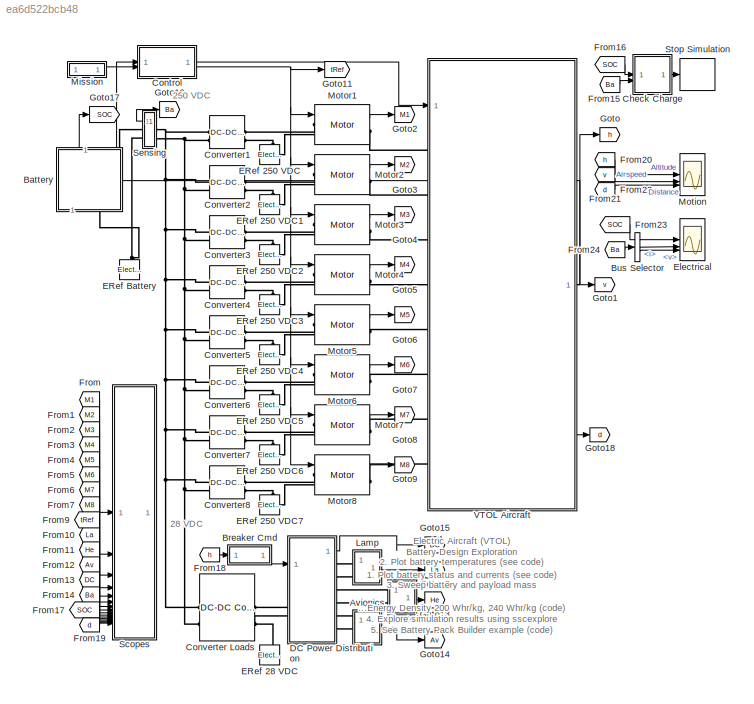
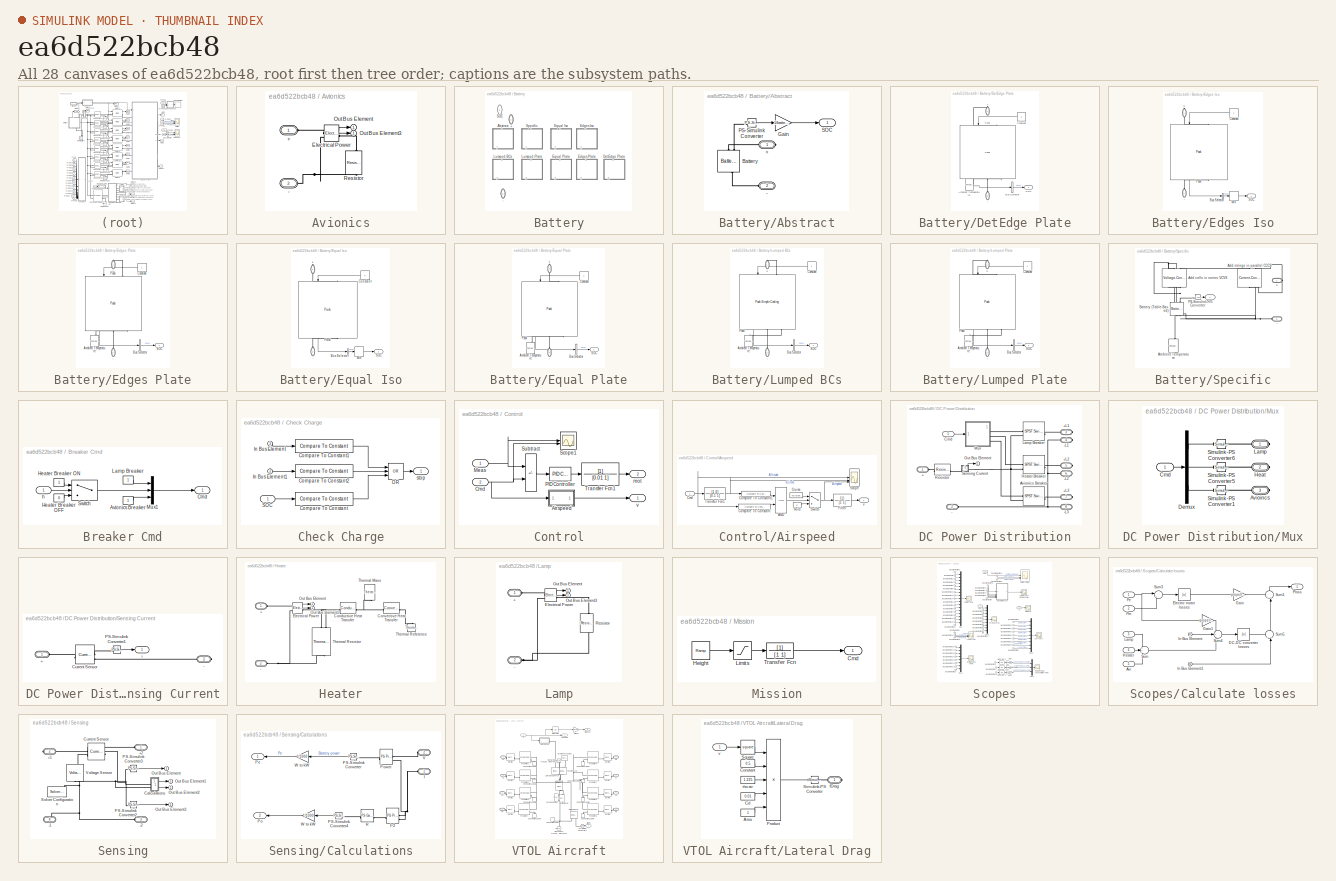
[diagram: thumbnail index - all 28 canvases of the model, root first then tree order]
MODEL slx_ea6d522bcb48
KIND model
CONFIG AbsTol = 1e-3
CONFIG EnableMultiTasking = on
CONFIG PostLoadFcn = warning('off','physmod:common:gl:sli:rtp:InvalidNonValueReference');\nwarning off Simulink:Engine:SortDiscontinuityInAlgLoop
CONFIG PreLoadFcn = ssc_airvtol_elec_default_params\nbattery_capacity = 180;battery_pdensity = 240;payload_mass_workspace = 80;
CONFIG SolverName = daessc
CONFIG StopTime = 2000
WORKSPACE source: MATLAB code (in-file)
WORKSPACE v0 = 0
WORKSPACE wheel_radius = 0.15
WORKSPACE k = 1e-2  (= 0.01)
WORKSPACE t_torque = 0.02
WORKSPACE rpm0 = 2000
BLOCK [SubSystem] Avionics
BLOCK [PMIOPort] Avionics/+
  Side = Left
BLOCK [PMIOPort] Avionics/-
  Port = 2
  Side = Left
BLOCK [Reference] Avionics/Electrical Power  REF=ssc_airvtol_components/Motor/Electrical  (lib defined in slx_aa945768214f)
Power
  SourceBlock = ssc_airvtol_components/Motor/Electrical\nPower
  SourceType = SubSystem
BLOCK [Outport] Avionics/Out Bus Element
BLOCK [Outport] Avionics/Out Bus Element3
BLOCK [Reference] Avionics/Resistor  REF=fl_lib/Electrical/Electrical Elements/Resistor
  NameLocation = left
  SourceBlock = fl_lib/Electrical/Electrical Elements/Resistor
  SourceType = Resistor
BLOCK [SubSystem] Battery
  AttributesFormatString = %<LabelModeActiveChoice>
  LabelModeActiveChoice = Abstract
  Variant = on
  VariantControl = Equal_Iso
  VariantControlMode = label
BLOCK [PMIOPort] Battery/+
  NameLocation = right
  Side = Right
BLOCK [PMIOPort] Battery/-
  NameLocation = right
  Port = 2
  Side = Left
BLOCK [SubSystem] Battery/Abstract
  VariantControl = Abstract
BLOCK [PMIOPort] Battery/Abstract/+
  Side = Right
BLOCK [PMIOPort] Battery/Abstract/-
  Port = 2
  Side = Left
BLOCK [Reference] Battery/Abstract/Battery  REF=batteryecm_lib/Battery
  NameLocation = left
  SourceBlock = batteryecm_lib/Battery
  SourceType = Battery
BLOCK [Gain] Battery/Abstract/Gain
  Gain = 1/battery_capacity
BLOCK [Reference] Battery/Abstract/PS-Simulink Converter  REF=nesl_utility/PS-Simulink
Converter
  SourceBlock = nesl_utility/PS-Simulink\nConverter
  SourceType = PS-Simulink\nConverter
BLOCK [Outport] Battery/Abstract/SOC
BLOCK [SubSystem] Battery/DetEdge Plate
  VariantControl = DetEdge_Plate
BLOCK [PMIOPort] Battery/DetEdge Plate/+
  NameLocation = left
  Side = Right
BLOCK [PMIOPort] Battery/DetEdge Plate/-
  NameLocation = right
  Port = 2
  Side = Left
BLOCK [Reference] Battery/DetEdge Plate/Ambient Temperature  REF=fl_lib/Thermal/Thermal Sources/Temperature Source
  NameLocation = left
  SourceBlock = fl_lib/Thermal/Thermal Sources/Temperature Source
  SourceType = Temperature Source
BLOCK [BusSelector] Battery/DetEdge Plate/Bus Selector
  OutputSignals = A1.socC.M1
BLOCK [Constant] Battery/DetEdge Plate/Constant
BLOCK [Reference] Battery/DetEdge Plate/Pack  REF=pack_5p48s8p_1g10g1_5g1g5_Thr_library/Pack
  NameLocation = right
  SourceBlock = pack_5p48s8p_1g10g1_5g1g5_Thr_library/Pack
BLOCK [Outport] Battery/DetEdge Plate/SOC
BLOCK [SubSystem] Battery/Edges Iso
  VariantControl = Edges_Iso
BLOCK [PMIOPort] Battery/Edges Iso/+
  NameLocation = right
  Side = Right
BLOCK [PMIOPort] Battery/Edges Iso/-
  NameLocation = right
  Port = 2
  Side = Left
BLOCK [BusSelector] Battery/Edges Iso/Bus Selector
  OutputSignals = A1.socC.M1
BLOCK [Constant] Battery/Edges Iso/Constant
BLOCK [MinMax] Battery/Edges Iso/Min
BLOCK [Reference] Battery/Edges Iso/Pack  REF=pack_5p48s8p_1g10g1_Iso_library/Pack
  NameLocation = right
  SourceBlock = pack_5p48s8p_1g10g1_Iso_library/Pack
BLOCK [Outport] Battery/Edges Iso/SOC
BLOCK [SubSystem] Battery/Edges Plate
  VariantControl = Edges_Plate
BLOCK [PMIOPort] Battery/Edges Plate/+
  NameLocation = right
  Side = Right
BLOCK [PMIOPort] Battery/Edges Plate/-
  NameLocation = right
  Port = 2
  Side = Left
BLOCK [Reference] Battery/Edges Plate/Ambient Temperature  REF=fl_lib/Thermal/Thermal Sources/Temperature Source
  NameLocation = left
  SourceBlock = fl_lib/Thermal/Thermal Sources/Temperature Source
  SourceType = Temperature Source
BLOCK [BusSelector] Battery/Edges Plate/Bus Selector
  OutputSignals = A1.socC.M1
BLOCK [Constant] Battery/Edges Plate/Constant
  NameLocation = top
BLOCK [Reference] Battery/Edges Plate/Pack  REF=pack_5p48s8p_1g10g1_Thr_library/Pack
  NameLocation = right
  SourceBlock = pack_5p48s8p_1g10g1_Thr_library/Pack
BLOCK [Outport] Battery/Edges Plate/SOC
BLOCK [SubSystem] Battery/Equal Iso
  VariantControl = Equal_Iso
BLOCK [PMIOPort] Battery/Equal Iso/+
  NameLocation = right
  Side = Right
BLOCK [PMIOPort] Battery/Equal Iso/-
  NameLocation = right
  Port = 2
  Side = Left
BLOCK [BusSelector] Battery/Equal Iso/Bus Selector
  OutputSignals = A1.socC.M1
BLOCK [Constant] Battery/Equal Iso/Constant
BLOCK [MinMax] Battery/Equal Iso/Min
BLOCK [Reference] Battery/Equal Iso/Pack  REF=pack_5p48s8p_4g4g4_Iso_library/Pack
  NameLocation = right
  SourceBlock = pack_5p48s8p_4g4g4_Iso_library/Pack
BLOCK [Outport] Battery/Equal Iso/SOC
BLOCK [SubSystem] Battery/Equal Plate
  VariantControl = Equal_Plate
BLOCK [PMIOPort] Battery/Equal Plate/+
  NameLocation = right
  Side = Right
BLOCK [PMIOPort] Battery/Equal Plate/-
  NameLocation = right
  Port = 2
  Side = Left
BLOCK [Reference] Battery/Equal Plate/Ambient Temperature  REF=fl_lib/Thermal/Thermal Sources/Temperature Source
  NameLocation = left
  SourceBlock = fl_lib/Thermal/Thermal Sources/Temperature Source
  SourceType = Temperature Source
BLOCK [BusSelector] Battery/Equal Plate/Bus Selector
  OutputSignals = A1.socC.M1
BLOCK [Constant] Battery/Equal Plate/Constant
  NameLocation = top
BLOCK [Reference] Battery/Equal Plate/Pack  REF=pack_5p48s8p_4g4g4_Thr_library/Pack
  NameLocation = right
  SourceBlock = pack_5p48s8p_4g4g4_Thr_library/Pack
BLOCK [Outport] Battery/Equal Plate/SOC
BLOCK [SubSystem] Battery/Lumped BCs
  VariantControl = Lumped_BCs
BLOCK [PMIOPort] Battery/Lumped BCs/+
  NameLocation = right
  Side = Right
BLOCK [PMIOPort] Battery/Lumped BCs/-
  NameLocation = right
  Port = 2
  Side = Left
BLOCK [Reference] Battery/Lumped BCs/Ambient Temperature  REF=fl_lib/Thermal/Thermal Sources/Temperature Source
  NameLocation = left
  SourceBlock = fl_lib/Thermal/Thermal Sources/Temperature Source
  SourceType = Temperature Source
BLOCK [BusSelector] Battery/Lumped BCs/Bus Selector
  OutputSignals = A1.socC.M1
BLOCK [Constant] Battery/Lumped BCs/Constant
BLOCK [Reference] Battery/Lumped BCs/Pack  REF=pack_5p48s8p_Thr_library/Pack
Simple
Cooling
  NameLocation = right
  SourceBlock = pack_5p48s8p_Thr_library/Pack\nSimple\nCooling
BLOCK [Outport] Battery/Lumped BCs/SOC
BLOCK [SubSystem] Battery/Lumped Plate
  VariantControl = Lumped_Plate
BLOCK [PMIOPort] Battery/Lumped Plate/+
  NameLocation = right
  Side = Right
BLOCK [PMIOPort] Battery/Lumped Plate/-
  NameLocation = right
  Port = 2
  Side = Left
BLOCK [Reference] Battery/Lumped Plate/Ambient Temperature  REF=fl_lib/Thermal/Thermal Sources/Temperature Source
  NameLocation = left
  SourceBlock = fl_lib/Thermal/Thermal Sources/Temperature Source
  SourceType = Temperature Source
BLOCK [BusSelector] Battery/Lumped Plate/Bus Selector
  OutputSignals = A1.socC.M1
BLOCK [Constant] Battery/Lumped Plate/Constant
BLOCK [Reference] Battery/Lumped Plate/Pack  REF=pack_5p48s8p_Thr_library/Pack
  NameLocation = right
  SourceBlock = pack_5p48s8p_Thr_library/Pack
BLOCK [Outport] Battery/Lumped Plate/SOC
BLOCK [Outport] Battery/SOC
  NameLocation = right
BLOCK [SubSystem] Battery/Specific
  VariantControl = Specific
BLOCK [PMIOPort] Battery/Specific/+
  Side = Right
BLOCK [PMIOPort] Battery/Specific/-
  Port = 2
  Side = Left
BLOCK [Reference] Battery/Specific/Add cells in series VCVS  REF=fl_lib/Electrical/Electrical Sources/Voltage-Controlled
Voltage Source
  NameLocation = right
  SourceBlock = fl_lib/Electrical/Electrical Sources/Voltage-Controlled\nVoltage Source
  SourceType = Voltage-Controlled\nVoltage Source
BLOCK [Reference] Battery/Specific/Add strings in parallel CCCS  REF=fl_lib/Electrical/Electrical Sources/Current-Controlled
Current Source
  NameLocation = left
  SourceBlock = fl_lib/Electrical/Electrical Sources/Current-Controlled\nCurrent Source
  SourceType = Current-Controlled\nCurrent Source
BLOCK [Reference] Battery/Specific/Ambient Temperature  REF=fl_lib/Thermal/Thermal Sources/Temperature Source
  NameLocation = right
  SourceBlock = fl_lib/Thermal/Thermal Sources/Temperature Source
  SourceType = Temperature Source
BLOCK [Reference] Battery/Specific/Battery (Table-Based)  REF=batteryecm_lib/Battery
(Table-Based)
  NameLocation = right
  SourceBlock = batteryecm_lib/Battery\n(Table-Based)
  SourceType = Battery\n(Table-Based)
BLOCK [Reference] Battery/Specific/PS-Simulink Converter  REF=nesl_utility/PS-Simulink
Converter
  SourceBlock = nesl_utility/PS-Simulink\nConverter
  SourceType = PS-Simulink\nConverter
BLOCK [Outport] Battery/Specific/SOC
BLOCK [SubSystem] Breaker Cmd
BLOCK [Constant] Breaker Cmd/Avionics Breaker
BLOCK [Outport] Breaker Cmd/Cmd
  VectorParamsAs1DForOutWhenUnconnected = off
BLOCK [Constant] Breaker Cmd/Heater Breaker OFF
  Value = 0
BLOCK [Constant] Breaker Cmd/Heater Breaker ON
  NameLocation = top
BLOCK [Constant] Breaker Cmd/Lamp Breaker
  NameLocation = top
BLOCK [Mux] Breaker Cmd/Mux1
  DisplayOption = bar
  Inputs = 3
BLOCK [Switch] Breaker Cmd/Switch
  InputSameDT = off
  SaturateOnIntegerOverflow = off
  Threshold = 50
  ZeroCross = off
BLOCK [Inport] Breaker Cmd/h
BLOCK [BusSelector] Bus Selector
  OutputSignals = i,v
BLOCK [SubSystem] Check Charge
BLOCK [Reference] Check Charge/Compare To Constant  REF=simulink/Logic and Bit
Operations/Compare
To Constant
  SourceBlock = simulink/Logic and Bit\nOperations/Compare\nTo Constant
  SourceType = Compare To Constant
BLOCK [Reference] Check Charge/Compare To Constant1  REF=simulink/Logic and Bit
Operations/Compare
To Constant
  SourceBlock = simulink/Logic and Bit\nOperations/Compare\nTo Constant
  SourceType = Compare To Constant
BLOCK [Reference] Check Charge/Compare To Constant2  REF=simulink/Logic and Bit
Operations/Compare
To Constant
  SourceBlock = simulink/Logic and Bit\nOperations/Compare\nTo Constant
  SourceType = Compare To Constant
BLOCK [Inport] Check Charge/In Bus Element
  Port = 2
BLOCK [Inport] Check Charge/In Bus Element1
  Port = 2
BLOCK [Logic] Check Charge/OR
  AllPortsSameDT = off
  IconShape = distinctive
  Inputs = 3
  Operator = OR
  OutDataTypeStr = boolean
BLOCK [Inport] Check Charge/SOC
BLOCK [Outport] Check Charge/stop
  VectorParamsAs1DForOutWhenUnconnected = off
BLOCK [SubSystem] Control
BLOCK [SubSystem] Control/Airspeed
BLOCK [Logic] Control/Airspeed/AND
  AllPortsSameDT = off
  OutDataTypeStr = boolean
BLOCK [Inport] Control/Airspeed/Cmd
BLOCK [Reference] Control/Airspeed/Compare To Constant  REF=simulink/Logic and Bit
Operations/Compare
To Constant
  SourceBlock = simulink/Logic and Bit\nOperations/Compare\nTo Constant
  SourceType = Compare To Constant
BLOCK [Reference] Control/Airspeed/Compare To Constant1  REF=simulink/Logic and Bit
Operations/Compare
To Constant
  SourceBlock = simulink/Logic and Bit\nOperations/Compare\nTo Constant
  SourceType = Compare To Constant
BLOCK [Constant] Control/Airspeed/Cruise
  NameLocation = top
  Value = vCruise
BLOCK [TransferFcn] Control/Airspeed/Filter
  Denominator = [1 1]
BLOCK [Constant] Control/Airspeed/Hold
  Value = 0
BLOCK [Scope] Control/Airspeed/Scope
  ActiveDisplayYMaximum = 112.5
  ActiveDisplayYMinimum = -12.5
  DataLoggingVariableName = ScopeData2
  Floating = off
  GraphicalSettings = {"GraphicalSettings":{"LegacySettings":true,"Style":{"AxesScalingProperties":{"ScaleAxesLimitsAtStop":false},"Style":{"AxesColor":"[0 0 0]","ChannelNames":["","",""],"ColorOrder":"[1 0.909803921568627 0.392156862745098;0.149019607843137 0.549019607843137 0.866666666666667;0.96078431372549 0.466666666666667 0.16078431372549;0.286274509803922 0.858823529411765 0.250980392156863;0.752941176470588 0.3...<+575ch>  <repeated x3 — deduplicated; at blocks: Scope, Electrical, Motion>
  LayoutDimensionsString = [3 1]
  MultipleDisplayCache = [{"MaxYLimMag":112.5,"MaxYLimReal":112.5,"MinYLimMag":0,"MinYLimReal":-12.5,"PlotAsMagnitudePhase":false,"ShowGrid":true,"ShowLegend":false,"Title":"%<SignalLabel>","YLabel":""},{"MaxYLimMag":10,"MaxYLimReal":3.75,"MinYLimMag":0,"MinYLimReal":-0.41667,"PlotAsMagnitudePhase":false,"ShowGrid":true,"ShowLegend":false,"Title":"%<SignalLabel>","YLabel":""},{"MaxYLimMag":10,"MaxYLimReal":31.5,"MinYLimMa...<+126ch>
  NumInputPorts = 3
  ScopeFrameLocation = window
  WasSavedAsWebScope = on
  WindowPosition = [795.000000,358.000000,453.000000,420.000000,]
BLOCK [Switch] Control/Airspeed/Switch
  Criteria = u2 > Threshold
  InputSameDT = off
  SaturateOnIntegerOverflow = off
BLOCK [TransferFcn] Control/Airspeed/Transfer Fcn1
  Denominator = [0.1 1]
  Numerator = [1 0]
BLOCK [Outport] Control/Airspeed/v
BLOCK [Inport] Control/Cmd
  Port = 2
BLOCK [Inport] Control/Meas
BLOCK [Reference] Control/PID Controller  REF=slpidlib/PID Controller
  LibrarySourceBlock = simulink/Continuous/PID Controller
  SourceBlock = slpidlib/PID Controller
  SourceType = PID 1dof
BLOCK [Scope] Control/Scope1
  ActiveDisplayYMaximum = 15.34881
  ActiveDisplayYMinimum = -1.70644
  DataLoggingVariableName = ScopeData1
  Floating = off
  GraphicalSettings = {"GraphicalSettings":{"LegacySettings":true,"Style":{"AxesScalingProperties":{"ScaleAxesLimitsAtStop":false},"Style":{"AxesColor":"[0 0 0]","ChannelNames":[""],"ColorOrder":"[1 0.909803921568627 0.392156862745098;0.149019607843137 0.549019607843137 0.866666666666667;0.96078431372549 0.466666666666667 0.16078431372549;0.286274509803922 0.858823529411765 0.250980392156863;0.752941176470588 0.3607843...<+548ch>
  MultipleDisplayCache = [{"MaxYLimMag":15.34881,"MaxYLimReal":15.34881,"MinYLimMag":0,"MinYLimReal":-1.70644,"PlotAsMagnitudePhase":false,"ShowGrid":true,"ShowLegend":false,"Title":"%<SignalLabel>","YLabel":""}]
  NumInputPorts = 2
  ScopeFrameLocation = window
  WasSavedAsWebScope = on
  WindowPosition = [488.000000,270.000000,560.000000,420.000000,]
BLOCK [Sum] Control/Subtract
  IconShape = rectangular
  Inputs = -+
BLOCK [TransferFcn] Control/Transfer Fcn1
  Denominator = [0.01 1]
BLOCK [Outport] Control/mot
  Port = 2
BLOCK [Outport] Control/v
BLOCK [Reference] Converter Loads  REF=ee_lib/Semiconductors &
Converters/Converters/DC-DC Converter
  SourceBlock = ee_lib/Semiconductors &\nConverters/Converters/DC-DC Converter
  SourceType = DC-DC Converter
BLOCK [Reference] Converter1  REF=ee_lib/Semiconductors &
Converters/Converters/DC-DC Converter
  SourceBlock = ee_lib/Semiconductors &\nConverters/Converters/DC-DC Converter
  SourceType = DC-DC Converter
BLOCK [Reference] Converter2  REF=ee_lib/Semiconductors &
Converters/Converters/DC-DC Converter
  SourceBlock = ee_lib/Semiconductors &\nConverters/Converters/DC-DC Converter
  SourceType = DC-DC Converter
BLOCK [Reference] Converter3  REF=ee_lib/Semiconductors &
Converters/Converters/DC-DC Converter
  SourceBlock = ee_lib/Semiconductors &\nConverters/Converters/DC-DC Converter
  SourceType = DC-DC Converter
BLOCK [Reference] Converter4  REF=ee_lib/Semiconductors &
Converters/Converters/DC-DC Converter
  SourceBlock = ee_lib/Semiconductors &\nConverters/Converters/DC-DC Converter
  SourceType = DC-DC Converter
BLOCK [Reference] Converter5  REF=ee_lib/Semiconductors &
Converters/Converters/DC-DC Converter
  SourceBlock = ee_lib/Semiconductors &\nConverters/Converters/DC-DC Converter
  SourceType = DC-DC Converter
BLOCK [Reference] Converter6  REF=ee_lib/Semiconductors &
Converters/Converters/DC-DC Converter
  SourceBlock = ee_lib/Semiconductors &\nConverters/Converters/DC-DC Converter
  SourceType = DC-DC Converter
BLOCK [Reference] Converter7  REF=ee_lib/Semiconductors &
Converters/Converters/DC-DC Converter
  SourceBlock = ee_lib/Semiconductors &\nConverters/Converters/DC-DC Converter
  SourceType = DC-DC Converter
BLOCK [Reference] Converter8  REF=ee_lib/Semiconductors &
Converters/Converters/DC-DC Converter
  SourceBlock = ee_lib/Semiconductors &\nConverters/Converters/DC-DC Converter
  SourceType = DC-DC Converter
BLOCK [SubSystem] DC Power Distribution
BLOCK [PMIOPort] DC Power Distribution/+
  Side = Left
BLOCK [PMIOPort] DC Power Distribution/+L1
  NameLocation = top
  Port = 3
  Side = Right
BLOCK [PMIOPort] DC Power Distribution/+L2
  NameLocation = top
  Port = 5
  Side = Right
BLOCK [PMIOPort] DC Power Distribution/+L3
  NameLocation = top
  Port = 7
  Side = Right
BLOCK [PMIOPort] DC Power Distribution/-
  Port = 2
  Side = Left
BLOCK [PMIOPort] DC Power Distribution/-L1
  Port = 4
  Side = Right
BLOCK [PMIOPort] DC Power Distribution/-L2
  Port = 6
  Side = Right
BLOCK [PMIOPort] DC Power Distribution/-L3
  Port = 8
  Side = Right
BLOCK [Reference] DC Power Distribution/Avionics Breaker  REF=ee_lib/Switches & Breakers/SPST Switch
  NameLocation = top
  SourceBlock = ee_lib/Switches & Breakers/SPST Switch
  SourceType = SPST Switch
BLOCK [Inport] DC Power Distribution/Cmd
BLOCK [Reference] DC Power Distribution/Heater Breaker  REF=ee_lib/Switches & Breakers/SPST Switch
  NameLocation = top
  SourceBlock = ee_lib/Switches & Breakers/SPST Switch
  SourceType = SPST Switch
BLOCK [Reference] DC Power Distribution/Lamp Breaker  REF=ee_lib/Switches & Breakers/SPST Switch
  NameLocation = top
  SourceBlock = ee_lib/Switches & Breakers/SPST Switch
  SourceType = SPST Switch
BLOCK [SubSystem] DC Power Distribution/Mux
BLOCK [PMIOPort] DC Power Distribution/Mux/Avioincs
  Port = 3
  Side = Right
BLOCK [Inport] DC Power Distribution/Mux/Cmd
BLOCK [Demux] DC Power Distribution/Mux/Demux
  Outputs = 3
BLOCK [PMIOPort] DC Power Distribution/Mux/Heat
  Port = 2
  Side = Right
BLOCK [PMIOPort] DC Power Distribution/Mux/Lamp
  Side = Right
BLOCK [Reference] DC Power Distribution/Mux/Simulink-PS Converter1  REF=nesl_utility/Simulink-PS
Converter
  NameLocation = top
  SourceBlock = nesl_utility/Simulink-PS\nConverter
  SourceType = Simulink-PS\nConverter
BLOCK [Reference] DC Power Distribution/Mux/Simulink-PS Converter5  REF=nesl_utility/Simulink-PS
Converter
  NameLocation = top
  SourceBlock = nesl_utility/Simulink-PS\nConverter
  SourceType = Simulink-PS\nConverter
BLOCK [Reference] DC Power Distribution/Mux/Simulink-PS Converter6  REF=nesl_utility/Simulink-PS
Converter
  NameLocation = top
  SourceBlock = nesl_utility/Simulink-PS\nConverter
  SourceType = Simulink-PS\nConverter
BLOCK [Outport] DC Power Distribution/Out Bus Element
BLOCK [Reference] DC Power Distribution/Resistor  REF=fl_lib/Electrical/Electrical Elements/Resistor
  SourceBlock = fl_lib/Electrical/Electrical Elements/Resistor
  SourceType = Resistor
BLOCK [SubSystem] DC Power Distribution/Sensing Current
BLOCK [PMIOPort] DC Power Distribution/Sensing Current/+
  Side = Left
BLOCK [PMIOPort] DC Power Distribution/Sensing Current/-
  Port = 2
  Side = Right
BLOCK [Reference] DC Power Distribution/Sensing Current/Current Sensor  REF=fl_lib/Electrical/Electrical Sensors/Current Sensor
  SourceBlock = fl_lib/Electrical/Electrical Sensors/Current Sensor
  SourceType = Current Sensor
BLOCK [Reference] DC Power Distribution/Sensing Current/PS-Simulink Converter1  REF=nesl_utility/PS-Simulink
Converter
  SourceBlock = nesl_utility/PS-Simulink\nConverter
  SourceType = PS-Simulink\nConverter
BLOCK [Outport] DC Power Distribution/Sensing Current/i
BLOCK [Reference] ERef 250 VDC  REF=fl_lib/Electrical/Electrical Elements/Electrical Reference
  NameLocation = right
  SourceBlock = fl_lib/Electrical/Electrical Elements/Electrical Reference
  SourceType = Electrical Reference
BLOCK [Reference] ERef 250 VDC1  REF=fl_lib/Electrical/Electrical Elements/Electrical Reference
  NameLocation = right
  SourceBlock = fl_lib/Electrical/Electrical Elements/Electrical Reference
  SourceType = Electrical Reference
BLOCK [Reference] ERef 250 VDC2  REF=fl_lib/Electrical/Electrical Elements/Electrical Reference
  NameLocation = right
  SourceBlock = fl_lib/Electrical/Electrical Elements/Electrical Reference
  SourceType = Electrical Reference
BLOCK [Reference] ERef 250 VDC3  REF=fl_lib/Electrical/Electrical Elements/Electrical Reference
  NameLocation = right
  SourceBlock = fl_lib/Electrical/Electrical Elements/Electrical Reference
  SourceType = Electrical Reference
BLOCK [Reference] ERef 250 VDC4  REF=fl_lib/Electrical/Electrical Elements/Electrical Reference
  NameLocation = right
  SourceBlock = fl_lib/Electrical/Electrical Elements/Electrical Reference
  SourceType = Electrical Reference
BLOCK [Reference] ERef 250 VDC5  REF=fl_lib/Electrical/Electrical Elements/Electrical Reference
  NameLocation = right
  SourceBlock = fl_lib/Electrical/Electrical Elements/Electrical Reference
  SourceType = Electrical Reference
BLOCK [Reference] ERef 250 VDC6  REF=fl_lib/Electrical/Electrical Elements/Electrical Reference
  NameLocation = right
  SourceBlock = fl_lib/Electrical/Electrical Elements/Electrical Reference
  SourceType = Electrical Reference
BLOCK [Reference] ERef 250 VDC7  REF=fl_lib/Electrical/Electrical Elements/Electrical Reference
  NameLocation = right
  SourceBlock = fl_lib/Electrical/Electrical Elements/Electrical Reference
  SourceType = Electrical Reference
BLOCK [Reference] ERef 28 VDC  REF=fl_lib/Electrical/Electrical Elements/Electrical Reference
  NameLocation = right
  SourceBlock = fl_lib/Electrical/Electrical Elements/Electrical Reference
  SourceType = Electrical Reference
BLOCK [Reference] ERef Battery  REF=fl_lib/Electrical/Electrical Elements/Electrical Reference
  NameLocation = left
  SourceBlock = fl_lib/Electrical/Electrical Elements/Electrical Reference
  SourceType = Electrical Reference
BLOCK [Scope] Electrical
  ActiveDisplayYMaximum = 1.0875
  ActiveDisplayYMinimum = 0.2125
  DataLoggingVariableName = ScopeData3
  Floating = off
  LayoutDimensionsString = [3 1]
  MultipleDisplayCache = [{"MaxYLimMag":1.0875,"MaxYLimReal":1.0875,"MinYLimMag":0.2125,"MinYLimReal":0.2125,"PlotAsMagnitudePhase":false,"ShowGrid":true,"ShowLegend":false,"Title":"Battery SOC","YLabel":""},{"MaxYLimMag":45.53705,"MaxYLimReal":900.20612,"MinYLimMag":0,"MinYLimReal":-88.07544,"PlotAsMagnitudePhase":false,"ShowGrid":true,"ShowLegend":false,"Title":"Battery Current","YLabel":""},{"MaxYLimMag":45.53705,"MaxY...<+161ch>
  NumInputPorts = 3
  ScopeFrameLocation = window
  Title = Battery SOC
  WasSavedAsWebScope = on
  WindowPosition = [795.000000,299.000000,471.000000,479.000000,]
BLOCK [From] From
  GotoTag = M1
BLOCK [From] From1
  GotoTag = M2
BLOCK [From] From10
  GotoTag = La
BLOCK [From] From11
  GotoTag = He
BLOCK [From] From12
  GotoTag = Av
BLOCK [From] From13
  GotoTag = DC
BLOCK [From] From14
  GotoTag = Ba
BLOCK [From] From15
  GotoTag = Ba
BLOCK [From] From16
  GotoTag = SOC
BLOCK [From] From17
  GotoTag = SOC
BLOCK [From] From18
  GotoTag = h
BLOCK [From] From19
  GotoTag = d
BLOCK [From] From2
  GotoTag = M3
BLOCK [From] From20
  GotoTag = h
BLOCK [From] From21
  GotoTag = v
BLOCK [From] From22
  GotoTag = d
BLOCK [From] From23
  GotoTag = SOC
BLOCK [From] From24
  GotoTag = Ba
BLOCK [From] From3
  GotoTag = M4
BLOCK [From] From4
  GotoTag = M5
BLOCK [From] From5
  GotoTag = M6
BLOCK [From] From6
  GotoTag = M7
BLOCK [From] From7
  GotoTag = M8
BLOCK [From] From9
  GotoTag = tRef
BLOCK [Goto] Goto
  GotoTag = h
BLOCK [Goto] Goto1
  GotoTag = v
BLOCK [Goto] Goto11
  GotoTag = tRef
BLOCK [Goto] Goto12
  GotoTag = La
BLOCK [Goto] Goto13
  GotoTag = He
BLOCK [Goto] Goto14
  GotoTag = Av
BLOCK [Goto] Goto15
  GotoTag = DC
BLOCK [Goto] Goto16
  GotoTag = Ba
  NameLocation = top
BLOCK [Goto] Goto17
  GotoTag = SOC
BLOCK [Goto] Goto18
  GotoTag = d
BLOCK [Goto] Goto2
  GotoTag = M1
BLOCK [Goto] Goto3
  GotoTag = M2
BLOCK [Goto] Goto4
  GotoTag = M3
BLOCK [Goto] Goto5
  GotoTag = M4
BLOCK [Goto] Goto6
  GotoTag = M5
BLOCK [Goto] Goto7
  GotoTag = M6
BLOCK [Goto] Goto8
  GotoTag = M7
BLOCK [Goto] Goto9
  GotoTag = M8
BLOCK [SubSystem] Heater
BLOCK [PMIOPort] Heater/+
  Side = Left
BLOCK [PMIOPort] Heater/-
  Port = 2
  Side = Left
BLOCK [Reference] Heater/Conductive Heat Transfer  REF=fl_lib/Thermal/Thermal Elements/Conductive Heat
Transfer
  SourceBlock = fl_lib/Thermal/Thermal Elements/Conductive Heat\nTransfer
  SourceType = Conductive Heat\nTransfer
BLOCK [Reference] Heater/Convective Heat Transfer  REF=fl_lib/Thermal/Thermal Elements/Convective Heat
Transfer
  SourceBlock = fl_lib/Thermal/Thermal Elements/Convective Heat\nTransfer
  SourceType = Convective Heat\nTransfer
BLOCK [Reference] Heater/Electrical Power  REF=ssc_airvtol_components/Motor/Electrical  (lib defined in slx_aa945768214f)
Power
  SourceBlock = ssc_airvtol_components/Motor/Electrical\nPower
  SourceType = SubSystem
BLOCK [Outport] Heater/Out Bus Element
BLOCK [Outport] Heater/Out Bus Element3
BLOCK [Reference] Heater/Thermal Mass  REF=fl_lib/Thermal/Thermal Elements/Thermal Mass
  NameLocation = right
  SourceBlock = fl_lib/Thermal/Thermal Elements/Thermal Mass
  SourceType = Thermal Mass
BLOCK [Reference] Heater/Thermal Reference  REF=fl_lib/Thermal/Thermal Elements/Thermal Reference
  NameLocation = right
  SourceBlock = fl_lib/Thermal/Thermal Elements/Thermal Reference
  SourceType = Thermal Reference
BLOCK [Reference] Heater/Thermal Resistor  REF=fl_lib/Electrical/Electrical Elements/Thermal Resistor
  NameLocation = right
  SourceBlock = fl_lib/Electrical/Electrical Elements/Thermal Resistor
  SourceType = Thermal Resistor
BLOCK [SubSystem] Lamp
  NameLocation = top
BLOCK [PMIOPort] Lamp/+
  Side = Left
BLOCK [PMIOPort] Lamp/-
  Port = 2
  Side = Left
BLOCK [Reference] Lamp/Electrical Power  REF=ssc_airvtol_components/Motor/Electrical  (lib defined in slx_aa945768214f)
Power
  SourceBlock = ssc_airvtol_components/Motor/Electrical\nPower
  SourceType = SubSystem
BLOCK [Outport] Lamp/Out Bus Element
BLOCK [Outport] Lamp/Out Bus Element3
BLOCK [Reference] Lamp/Resistor  REF=fl_lib/Electrical/Electrical Elements/Resistor
  NameLocation = left
  SourceBlock = fl_lib/Electrical/Electrical Elements/Resistor
  SourceType = Resistor
BLOCK [SubSystem] Mission
BLOCK [Outport] Mission/Cmd
BLOCK [Reference] Mission/Height  REF=simulink/Sources/Ramp
  SourceBlock = simulink/Sources/Ramp
  SourceType = Ramp
BLOCK [Saturate] Mission/Limits
  UpperLimit = h_cruise
  ZeroCross = off
BLOCK [TransferFcn] Mission/Transfer Fcn
  Denominator = [1 1]
BLOCK [Scope] Motion
  ActiveDisplayYMaximum = 114.73236
  ActiveDisplayYMinimum = -12.74881
  DataLoggingVariableName = ScopeData1
  Floating = off
  LayoutDimensionsString = [3 1]
  MultipleDisplayCache = [{"MaxYLimMag":114.73236,"MaxYLimReal":114.73236,"MinYLimMag":0,"MinYLimReal":-12.74881,"PlotAsMagnitudePhase":false,"ShowGrid":true,"ShowLegend":false,"Title":"%<SignalLabel>","YLabel":""},{"MaxYLimMag":45.53705,"MaxYLimReal":31.5,"MinYLimMag":0,"MinYLimReal":-3.5,"PlotAsMagnitudePhase":false,"ShowGrid":true,"ShowLegend":false,"Title":"%<SignalLabel>","YLabel":""},{"MaxYLimMag":45.53705,"MaxYLimR...<+154ch>
  NumInputPorts = 3
  ScopeFrameLocation = window
  WasSavedAsWebScope = on
  WindowPosition = [795.000000,299.000000,471.000000,479.000000,]
BLOCK [Reference] Motor1  REF=ssc_airvtol_components/Motor  (lib defined in slx_aa945768214f)
  NameLocation = top
  SourceBlock = ssc_airvtol_components/Motor
BLOCK [Reference] Motor2  REF=ssc_airvtol_components/Motor  (lib defined in slx_aa945768214f)
  SourceBlock = ssc_airvtol_components/Motor
BLOCK [Reference] Motor3  REF=ssc_airvtol_components/Motor  (lib defined in slx_aa945768214f)
  SourceBlock = ssc_airvtol_components/Motor
BLOCK [Reference] Motor4  REF=ssc_airvtol_components/Motor  (lib defined in slx_aa945768214f)
  SourceBlock = ssc_airvtol_components/Motor
BLOCK [Reference] Motor5  REF=ssc_airvtol_components/Motor  (lib defined in slx_aa945768214f)
  SourceBlock = ssc_airvtol_components/Motor
BLOCK [Reference] Motor6  REF=ssc_airvtol_components/Motor  (lib defined in slx_aa945768214f)
  SourceBlock = ssc_airvtol_components/Motor
BLOCK [Reference] Motor7  REF=ssc_airvtol_components/Motor  (lib defined in slx_aa945768214f)
  SourceBlock = ssc_airvtol_components/Motor
BLOCK [Reference] Motor8  REF=ssc_airvtol_components/Motor  (lib defined in slx_aa945768214f)
  SourceBlock = ssc_airvtol_components/Motor
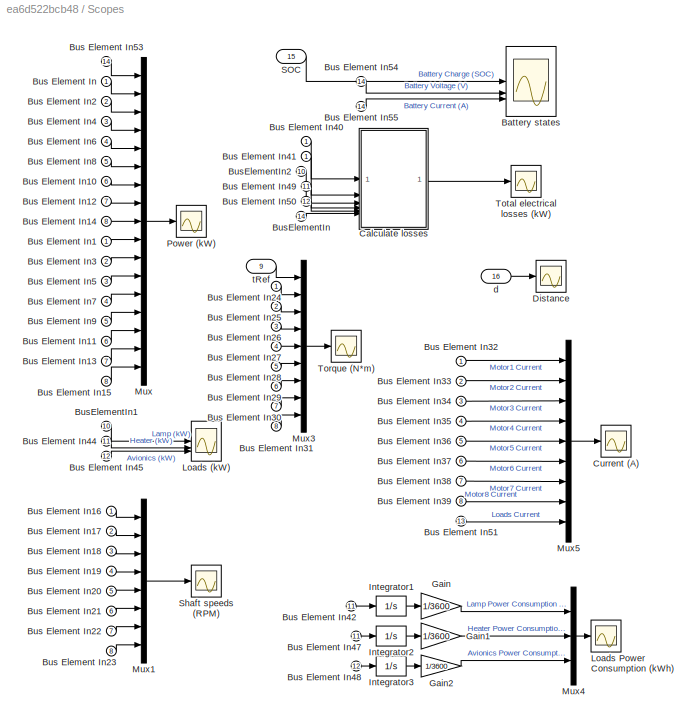
BLOCK [SubSystem] Scopes
BLOCK [Scope] Scopes/Battery states
  ActiveDisplayYMaximum = 1.0004
  ActiveDisplayYMinimum = 0.99644
  DataLogging = on
  DataLoggingDecimateData = on
  DataLoggingDecimation = 1
  DataLoggingSaveFormat = Structure With Time
  DataLoggingVariableName = PureElecBatteryScopeData
  Floating = off
  GraphicalSettings = {"GraphicalSettings":{"LegacySettings":true,"Style":{"AxesScalingProperties":{"ScaleAxesLimitsAtStop":false},"Style":{"AxesColor":"[0 0 0]","ChannelNames":["","",""],"ColorOrder":"[1 0.909803921568627 0.392156862745098;0.149019607843137 0.549019607843137 0.866666666666667;0.96078431372549 0.466666666666667 0.16078431372549;0.286274509803922 0.858823529411765 0.250980392156863;0.752941176470588 0.3...<+612ch>
  LayoutDimensionsString = [3 1]
  MultipleDisplayCache = [{"MaxYLimMag":1.0004,"MaxYLimReal":1.0004,"MinYLimMag":0.99644,"MinYLimReal":0.99644,"PlotAsMagnitudePhase":false,"ShowGrid":true,"ShowLegend":false,"Title":"%<SignalLabel>","YLabel":""},{"MaxYLimMag":161.12532,"MaxYLimReal":207.25162,"MinYLimMag":0,"MinYLimReal":145.35863,"PlotAsMagnitudePhase":false,"ShowGrid":true,"ShowLegend":false,"Title":"%<SignalLabel>","YLabel":""},{"MaxYLimMag":161.12532...<+168ch>
  NumInputPorts = 3
  ScopeFrameLocation = window
  WasSavedAsWebScope = on
  WindowPosition = [488.000000,270.000000,560.000000,420.000000,]
BLOCK [Inport] Scopes/Bus Element In
BLOCK [Inport] Scopes/Bus Element In1
BLOCK [Inport] Scopes/Bus Element In10
  Port = 6
BLOCK [Inport] Scopes/Bus Element In11
  Port = 6
BLOCK [Inport] Scopes/Bus Element In12
  Port = 7
BLOCK [Inport] Scopes/Bus Element In13
  Port = 7
BLOCK [Inport] Scopes/Bus Element In14
  Port = 8
BLOCK [Inport] Scopes/Bus Element In15
  Port = 8
BLOCK [Inport] Scopes/Bus Element In16
BLOCK [Inport] Scopes/Bus Element In17
  Port = 2
BLOCK [Inport] Scopes/Bus Element In18
  Port = 3
BLOCK [Inport] Scopes/Bus Element In19
  Port = 4
BLOCK [Inport] Scopes/Bus Element In2
  Port = 2
BLOCK [Inport] Scopes/Bus Element In20
  Port = 5
BLOCK [Inport] Scopes/Bus Element In21
  Port = 6
BLOCK [Inport] Scopes/Bus Element In22
  Port = 7
BLOCK [Inport] Scopes/Bus Element In23
  Port = 8
BLOCK [Inport] Scopes/Bus Element In24
BLOCK [Inport] Scopes/Bus Element In25
  Port = 2
BLOCK [Inport] Scopes/Bus Element In26
  Port = 3
BLOCK [Inport] Scopes/Bus Element In27
  Port = 4
BLOCK [Inport] Scopes/Bus Element In28
  Port = 5
BLOCK [Inport] Scopes/Bus Element In29
  Port = 6
BLOCK [Inport] Scopes/Bus Element In3
  Port = 2
BLOCK [Inport] Scopes/Bus Element In30
  Port = 7
BLOCK [Inport] Scopes/Bus Element In31
  Port = 8
BLOCK [Inport] Scopes/Bus Element In32
BLOCK [Inport] Scopes/Bus Element In33
  Port = 2
BLOCK [Inport] Scopes/Bus Element In34
  Port = 3
BLOCK [Inport] Scopes/Bus Element In35
  Port = 4
BLOCK [Inport] Scopes/Bus Element In36
  Port = 5
BLOCK [Inport] Scopes/Bus Element In37
  Port = 6
BLOCK [Inport] Scopes/Bus Element In38
  Port = 7
BLOCK [Inport] Scopes/Bus Element In39
  Port = 8
BLOCK [Inport] Scopes/Bus Element In4
  Port = 3
BLOCK [Inport] Scopes/Bus Element In40
BLOCK [Inport] Scopes/Bus Element In41
BLOCK [Inport] Scopes/Bus Element In42
  Port = 11
BLOCK [Inport] Scopes/Bus Element In44
  Port = 11
BLOCK [Inport] Scopes/Bus Element In45
  Port = 12
BLOCK [Inport] Scopes/Bus Element In47
  Port = 11
BLOCK [Inport] Scopes/Bus Element In48
  Port = 12
BLOCK [Inport] Scopes/Bus Element In49
  Port = 11
BLOCK [Inport] Scopes/Bus Element In5
  Port = 3
BLOCK [Inport] Scopes/Bus Element In50
  Port = 12
BLOCK [Inport] Scopes/Bus Element In51
  Port = 13
BLOCK [Inport] Scopes/Bus Element In53
  Port = 14
BLOCK [Inport] Scopes/Bus Element In54
  Port = 14
BLOCK [Inport] Scopes/Bus Element In55
  Port = 14
BLOCK [Inport] Scopes/Bus Element In6
  Port = 4
BLOCK [Inport] Scopes/Bus Element In7
  Port = 4
BLOCK [Inport] Scopes/Bus Element In8
  Port = 5
BLOCK [Inport] Scopes/Bus Element In9
  Port = 5
BLOCK [Inport] Scopes/BusElementIn
  Port = 14
BLOCK [Inport] Scopes/BusElementIn1
  Port = 10
BLOCK [Inport] Scopes/BusElementIn2
  Port = 10
BLOCK [SubSystem] Scopes/Calculate losses
BLOCK [Abs] Scopes/Calculate losses/ Electric motor losses
BLOCK [Inport] Scopes/Calculate losses/Avi
  Port = 5
BLOCK [Abs] Scopes/Calculate losses/DC-DC converter losses
BLOCK [Gain] Scopes/Calculate losses/Gain
  Gain = propeller_num
BLOCK [Gain] Scopes/Calculate losses/Gain1
  Gain = propeller_num
BLOCK [Inport] Scopes/Calculate losses/Heater
  Port = 4
BLOCK [Inport] Scopes/Calculate losses/In Bus Element
  Port = 6
BLOCK [Inport] Scopes/Calculate losses/In Bus Element1
  Port = 6
BLOCK [Inport] Scopes/Calculate losses/Lamp
  Port = 3
BLOCK [Inport] Scopes/Calculate losses/Pe
BLOCK [Outport] Scopes/Calculate losses/Ploss
  VectorParamsAs1DForOutWhenUnconnected = off
BLOCK [Inport] Scopes/Calculate losses/Pm
  Port = 2
BLOCK [Sum] Scopes/Calculate losses/Sum
  Inputs = +++
BLOCK [Sum] Scopes/Calculate losses/Sum1
  Inputs = ++|
  NameLocation = right
BLOCK [Sum] Scopes/Calculate losses/Sum3
  Inputs = |+-
BLOCK [Sum] Scopes/Calculate losses/Sum4
  Inputs = -+-
BLOCK [Sum] Scopes/Calculate losses/Sum5
  Inputs = ++|
  NameLocation = right
BLOCK [Scope] Scopes/Current (A)
  ActiveDisplayYMaximum = 81.99488
  ActiveDisplayYMinimum = -9.11054
  DataLogging = on
  DataLoggingDecimateData = on
  DataLoggingDecimation = 1
  DataLoggingMaxPoints = 50000
  DataLoggingSaveFormat = Structure With Time
  DataLoggingVariableName = PureElecCurrentData
  Floating = off
  GraphicalSettings = {"GraphicalSettings":{"LegacySettings":true,"Style":{"AxesScalingProperties":{"ScaleAxesLimitsAtStop":false},"Style":{"AxesColor":"[0 0 0]","ChannelNames":[""],"ColorOrder":"[1 0.909803921568627 0.392156862745098;0.149019607843137 0.549019607843137 0.866666666666667;0.96078431372549 0.466666666666667 0.16078431372549;0.286274509803922 0.858823529411765 0.250980392156863;0.752941176470588 0.3607843...<+513ch>  <repeated x6 — deduplicated; at blocks: Current (A), Loads (kW), Loads Power Consumption (kWh), Power (kW), Shaft speeds (RPM), Total electrical losses (kW)>
  MultipleDisplayCache = [{"MaxYLimMag":81.99488,"MaxYLimReal":81.99488,"MinYLimMag":0,"MinYLimReal":-9.11054,"PlotAsMagnitudePhase":false,"ShowGrid":true,"ShowLegend":true,"Title":"%<SignalLabel>","YLabel":""}]
  NumInputPorts = 1
  ScopeFrameLocation = window
  ShowLegend = on
  TimeSpan = 20
  WasSavedAsWebScope = on
  WindowPosition = [795.000000,420.000000,324.000000,238.000000,]
BLOCK [Scope] Scopes/Distance
  ActiveDisplayYMaximum = 26.17372
  ActiveDisplayYMinimum = -2.90819
  DataLogging = on
  DataLoggingSaveFormat = Array
  DataLoggingVariableName = Distance
  Floating = off
  GraphicalSettings = {"GraphicalSettings":{"LegacySettings":true,"Style":{"Style":{"AxesColor":"[0 0 0]","ChannelNames":[""],"ColorOrder":"[1 0.909803921568627 0.392156862745098;0.149019607843137 0.549019607843137 0.866666666666667;0.96078431372549 0.466666666666667 0.16078431372549;0.286274509803922 0.858823529411765 0.250980392156863;0.752941176470588 0.36078431372549 0.984313725490196;0.423529411764706 0.9568627450...<+457ch>
  MultipleDisplayCache = [{"MaxYLimMag":26.17372,"MaxYLimReal":26.17372,"MinYLimMag":0,"MinYLimReal":-2.90819,"PlotAsMagnitudePhase":false,"ShowGrid":true,"ShowLegend":false,"Title":"%<SignalLabel>","YLabel":""}]
  NumInputPorts = 1
  ScopeFrameLocation = window
  WasSavedAsWebScope = on
  WindowPosition = [795.000000,593.000000,1019.000000,185.000000,]
BLOCK [Gain] Scopes/Gain
  Gain = 1/3600
BLOCK [Gain] Scopes/Gain1
  Gain = 1/3600
BLOCK [Gain] Scopes/Gain2
  Gain = 1/3600
BLOCK [Integrator] Scopes/Integrator1
BLOCK [Integrator] Scopes/Integrator2
BLOCK [Integrator] Scopes/Integrator3
BLOCK [Scope] Scopes/Loads (kW)
  ActiveDisplayYMaximum = 0.8744
  ActiveDisplayYMinimum = -0.09715
  DataLoggingDecimateData = on
  DataLoggingDecimation = 1
  DataLoggingLimitDataPoints = on
  DataLoggingMaxPoints = 50000
  DataLoggingSaveFormat = Structure With Time
  DataLoggingVariableName = ScopeData1
  Floating = off
  MultipleDisplayCache = [{"MaxYLimMag":0.8744,"MaxYLimReal":0.8744,"MinYLimMag":0,"MinYLimReal":-0.09715,"PlotAsMagnitudePhase":false,"ShowGrid":true,"ShowLegend":true,"Title":"%<SignalLabel>","YLabel":""}]
  NumInputPorts = 3
  ScopeFrameLocation = window
  ShowLegend = on
  TimeSpanOverrunAction = Scroll
  WasSavedAsWebScope = on
  WindowPosition = [795.000000,420.000000,324.000000,238.000000,]
BLOCK [Scope] Scopes/Loads Power Consumption (kWh)
  ActiveDisplayYMaximum = 0.00227
  ActiveDisplayYMinimum = -0.00246
  DataLogging = on
  DataLoggingDecimateData = on
  DataLoggingDecimation = 1
  DataLoggingMaxPoints = 50000
  DataLoggingSaveFormat = Structure With Time
  DataLoggingVariableName = PureElecLoadPowerConsumptionData
  Floating = off
  MultipleDisplayCache = [{"MaxYLimMag":0.00246,"MaxYLimReal":0.00227,"MinYLimMag":0,"MinYLimReal":-0.00246,"PlotAsMagnitudePhase":false,"ShowGrid":true,"ShowLegend":true,"Title":"%<SignalLabel>","YLabel":""}]
  NumInputPorts = 1
  ScopeFrameLocation = window
  ShowLegend = on
  TimeSpan = 20
  WasSavedAsWebScope = on
  WindowPosition = [795.000000,410.000000,332.000000,248.000000,]
BLOCK [Mux] Scopes/Mux
  DisplayOption = bar
  Inputs = 17
BLOCK [Mux] Scopes/Mux1
  DisplayOption = bar
  Inputs = 8
BLOCK [Mux] Scopes/Mux3
  DisplayOption = bar
  Inputs = 9
BLOCK [Mux] Scopes/Mux4
  DisplayOption = bar
  Inputs = 3
BLOCK [Mux] Scopes/Mux5
  DisplayOption = bar
  Inputs = 9
BLOCK [Scope] Scopes/Power (kW)
  ActiveDisplayYMaximum = 127.63764
  ActiveDisplayYMinimum = -14.18196
  DataLoggingDecimateData = on
  DataLoggingDecimation = 1
  DataLoggingLimitDataPoints = on
  DataLoggingMaxPoints = 50000
  DataLoggingSaveFormat = Structure With Time
  DataLoggingVariableName = ScopeData8
  Floating = off
  MultipleDisplayCache = [{"MaxYLimMag":127.63764,"MaxYLimReal":127.63764,"MinYLimMag":0,"MinYLimReal":-14.18196,"PlotAsMagnitudePhase":false,"ShowGrid":true,"ShowLegend":true,"Title":"%<SignalLabel>","YLabel":""}]
  NumInputPorts = 1
  ScopeFrameLocation = window
  ShowLegend = on
  TimeSpan = 20
  WasSavedAsWebScope = on
  WindowPosition = [795.000000,433.000000,324.000000,225.000000,]
BLOCK [Inport] Scopes/SOC
  Port = 15
BLOCK [Scope] Scopes/Shaft speeds (RPM)
  ActiveDisplayYMaximum = 1520.86993
  ActiveDisplayYMinimum = -168.98555
  DataLoggingDecimateData = on
  DataLoggingDecimation = 1
  DataLoggingMaxPoints = 50000
  DataLoggingSaveFormat = Structure With Time
  DataLoggingVariableName = ScopeData1
  Floating = off
  MultipleDisplayCache = [{"MaxYLimMag":1520.86993,"MaxYLimReal":1520.86993,"MinYLimMag":0,"MinYLimReal":-168.98555,"PlotAsMagnitudePhase":false,"ShowGrid":true,"ShowLegend":false,"Title":"%<SignalLabel>","YLabel":""}]
  NumInputPorts = 1
  ScopeFrameLocation = window
  WasSavedAsWebScope = on
  WindowPosition = [488.000000,270.000000,560.000000,420.000000,]
BLOCK [Scope] Scopes/Torque (N*m)
  ActiveDisplayYMaximum = 74.62136
  ActiveDisplayYMinimum = -8.29359
  DataLoggingDecimateData = on
  DataLoggingDecimation = 1
  DataLoggingLimitDataPoints = on
  DataLoggingMaxPoints = 50000
  DataLoggingSaveFormat = Structure With Time
  DataLoggingVariableName = ScopeData1
  Floating = off
  GraphicalSettings = {"GraphicalSettings":{"LegacySettings":true,"Style":{"AxesScalingProperties":{"ScaleAxesLimitsAtStop":false},"Style":{"AxesColor":"[0 0 0]","ChannelNames":[""],"ColorOrder":"[1 0.909803921568627 0.392156862745098;0.149019607843137 0.549019607843137 0.866666666666667;0.96078431372549 0.466666666666667 0.16078431372549;0.286274509803922 0.858823529411765 0.250980392156863;0.752941176470588 0.3607843...<+535ch>
  MultipleDisplayCache = [{"MaxYLimMag":74.62136,"MaxYLimReal":74.62136,"MinYLimMag":0,"MinYLimReal":-8.29359,"PlotAsMagnitudePhase":false,"ShowGrid":true,"ShowLegend":true,"Title":"%<SignalLabel>","YLabel":""}]
  NumInputPorts = 1
  ScopeFrameLocation = window
  ShowLegend = on
  TimeSpan = 2000
  WasSavedAsWebScope = on
  WindowPosition = [795.000000,239.000000,528.000000,419.000000,]
BLOCK [Scope] Scopes/Total electrical losses (kW)
  ActiveDisplayYMaximum = 29.92464
  ActiveDisplayYMinimum = -1.88992
  DataLoggingDecimateData = on
  DataLoggingDecimation = 1
  DataLoggingLimitDataPoints = on
  DataLoggingSaveFormat = Structure With Time
  DataLoggingVariableName = ScopeData3
  Floating = off
  MultipleDisplayCache = [{"MaxYLimMag":29.92464,"MaxYLimReal":29.92464,"MinYLimMag":0,"MinYLimReal":-1.88992,"PlotAsMagnitudePhase":false,"ShowGrid":true,"ShowLegend":false,"Title":"%<SignalLabel>","YLabel":""}]
  NumInputPorts = 1
  ScopeFrameLocation = window
  TimeSpan = 20
  WasSavedAsWebScope = on
  WindowPosition = [488.000000,270.000000,560.000000,420.000000,]
BLOCK [Inport] Scopes/d
  Port = 16
BLOCK [Inport] Scopes/tRef
  NameLocation = top
  Port = 9
BLOCK [SubSystem] Sensing
  NameLocation = top
BLOCK [PMIOPort] Sensing/+1
  Port = 2
  Side = Right
BLOCK [PMIOPort] Sensing/+2
  Side = Left
BLOCK [PMIOPort] Sensing/-1
  Port = 4
  Side = Right
BLOCK [PMIOPort] Sensing/-2
  Port = 3
  Side = Left
BLOCK [SubSystem] Sensing/Calculations
BLOCK [Gain] Sensing/Calculations/ W to kW 
  Gain = 1/1000
BLOCK [PMIOPort] Sensing/Calculations/I
  Side = Left
BLOCK [Reference] Sensing/Calculations/I^2  REF=fl_lib/Physical Signals/Functions/PS Product
  SourceBlock = fl_lib/Physical Signals/Functions/PS Product
  SourceType = PS Product
BLOCK [Reference] Sensing/Calculations/PS-Simulink Converter  REF=nesl_utility/PS-Simulink
Converter
  SourceBlock = nesl_utility/PS-Simulink\nConverter
  SourceType = PS-Simulink\nConverter
BLOCK [Reference] Sensing/Calculations/PS-Simulink Converter4  REF=nesl_utility/PS-Simulink
Converter
  NameLocation = top
  SourceBlock = nesl_utility/PS-Simulink\nConverter
  SourceType = PS-Simulink\nConverter
BLOCK [Outport] Sensing/Calculations/Pe
  NameLocation = top
BLOCK [Outport] Sensing/Calculations/Po
  NameLocation = top
  Port = 2
BLOCK [Reference] Sensing/Calculations/Power  REF=fl_lib/Physical Signals/Functions/PS Product
  SourceBlock = fl_lib/Physical Signals/Functions/PS Product
  SourceType = PS Product
BLOCK [Reference] Sensing/Calculations/R  REF=fl_lib/Physical Signals/Functions/PS Gain
  SourceBlock = fl_lib/Physical Signals/Functions/PS Gain
  SourceType = PS Gain
BLOCK [PMIOPort] Sensing/Calculations/V
  Port = 2
  Side = Left
BLOCK [Gain] Sensing/Calculations/W to kW
  Gain = 1/1000
BLOCK [Reference] Sensing/Current Sensor  REF=fl_lib/Electrical/Electrical Sensors/Current Sensor
  SourceBlock = fl_lib/Electrical/Electrical Sensors/Current Sensor
  SourceType = Current Sensor
BLOCK [Outport] Sensing/Out Bus Element
BLOCK [Outport] Sensing/Out Bus Element1
BLOCK [Outport] Sensing/Out Bus Element2
BLOCK [Outport] Sensing/Out Bus Element3
BLOCK [Reference] Sensing/PS-Simulink Converter2  REF=nesl_utility/PS-Simulink
Converter
  SourceBlock = nesl_utility/PS-Simulink\nConverter
  SourceType = PS-Simulink\nConverter
BLOCK [Reference] Sensing/PS-Simulink Converter3  REF=nesl_utility/PS-Simulink
Converter
  SourceBlock = nesl_utility/PS-Simulink\nConverter
  SourceType = PS-Simulink\nConverter
BLOCK [Reference] Sensing/Solver Configuration  REF=nesl_utility/Solver
Configuration
  NameLocation = top
  SourceBlock = nesl_utility/Solver\nConfiguration
  SourceType = Solver\nConfiguration
BLOCK [Reference] Sensing/Voltage Sensor  REF=fl_lib/Electrical/Electrical Sensors/Voltage Sensor
  NameLocation = right
  SourceBlock = fl_lib/Electrical/Electrical Sensors/Voltage Sensor
  SourceType = Voltage Sensor
BLOCK [Stop] Stop Simulation
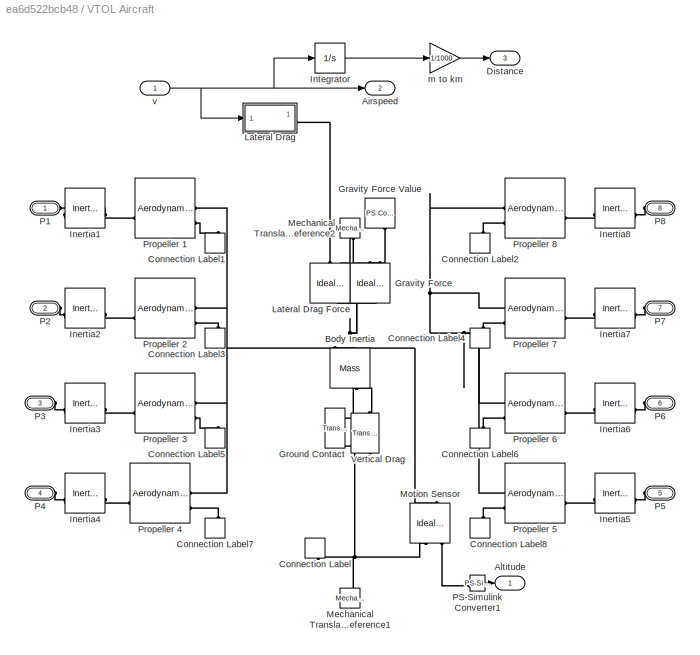
BLOCK [SubSystem] VTOL Aircraft
BLOCK [Outport] VTOL Aircraft/Airspeed
  Port = 2
BLOCK [Outport] VTOL Aircraft/Altitude
BLOCK [Reference] VTOL Aircraft/Body Inertia  REF=fl_lib/Mechanical/Translational
Elements/Mass
  NameLocation = left
  SourceBlock = fl_lib/Mechanical/Translational\nElements/Mass
  SourceType = Mass
BLOCK [ConnectionLabel] VTOL Aircraft/Connection Label
  Label = TRef
  NameLocation = right
BLOCK [ConnectionLabel] VTOL Aircraft/Connection Label1
  Label = TRef
  NameLocation = right
BLOCK [ConnectionLabel] VTOL Aircraft/Connection Label2
  Label = TRef
  NameLocation = left
BLOCK [ConnectionLabel] VTOL Aircraft/Connection Label3
  Label = TRef
  NameLocation = right
BLOCK [ConnectionLabel] VTOL Aircraft/Connection Label4
  Label = TRef
  NameLocation = left
BLOCK [ConnectionLabel] VTOL Aircraft/Connection Label5
  Label = TRef
  NameLocation = right
BLOCK [ConnectionLabel] VTOL Aircraft/Connection Label6
  Label = TRef
  NameLocation = left
BLOCK [ConnectionLabel] VTOL Aircraft/Connection Label7
  Label = TRef
  NameLocation = right
BLOCK [ConnectionLabel] VTOL Aircraft/Connection Label8
  Label = TRef
  NameLocation = left
BLOCK [Outport] VTOL Aircraft/Distance
  Port = 3
BLOCK [Reference] VTOL Aircraft/Gravity Force  REF=fl_lib/Mechanical/Mechanical Sources/Ideal Force Source
  NameLocation = right
  SourceBlock = fl_lib/Mechanical/Mechanical Sources/Ideal Force Source
  SourceType = Ideal Force Source
BLOCK [Reference] VTOL Aircraft/Gravity Force Value  REF=fl_lib/Physical Signals/Sources/PS Constant
  NameLocation = right
  SourceBlock = fl_lib/Physical Signals/Sources/PS Constant
  SourceType = PS Constant
BLOCK [Reference] VTOL Aircraft/Ground Contact  REF=fl_lib/Mechanical/Translational
Elements/Translational Hard
Stop
  NameLocation = left
  SourceBlock = fl_lib/Mechanical/Translational\nElements/Translational Hard\nStop
  SourceType = Translational Hard\nStop
BLOCK [Reference] VTOL Aircraft/Inertia1  REF=fl_lib/Mechanical/Rotational Elements/Inertia
  SourceBlock = fl_lib/Mechanical/Rotational Elements/Inertia
  SourceType = Inertia
BLOCK [Reference] VTOL Aircraft/Inertia2  REF=fl_lib/Mechanical/Rotational Elements/Inertia
  SourceBlock = fl_lib/Mechanical/Rotational Elements/Inertia
  SourceType = Inertia
BLOCK [Reference] VTOL Aircraft/Inertia3  REF=fl_lib/Mechanical/Rotational Elements/Inertia
  SourceBlock = fl_lib/Mechanical/Rotational Elements/Inertia
  SourceType = Inertia
BLOCK [Reference] VTOL Aircraft/Inertia4  REF=fl_lib/Mechanical/Rotational Elements/Inertia
  SourceBlock = fl_lib/Mechanical/Rotational Elements/Inertia
  SourceType = Inertia
BLOCK [Reference] VTOL Aircraft/Inertia5  REF=fl_lib/Mechanical/Rotational Elements/Inertia
  SourceBlock = fl_lib/Mechanical/Rotational Elements/Inertia
  SourceType = Inertia
BLOCK [Reference] VTOL Aircraft/Inertia6  REF=fl_lib/Mechanical/Rotational Elements/Inertia
  SourceBlock = fl_lib/Mechanical/Rotational Elements/Inertia
  SourceType = Inertia
BLOCK [Reference] VTOL Aircraft/Inertia7  REF=fl_lib/Mechanical/Rotational Elements/Inertia
  SourceBlock = fl_lib/Mechanical/Rotational Elements/Inertia
  SourceType = Inertia
BLOCK [Reference] VTOL Aircraft/Inertia8  REF=fl_lib/Mechanical/Rotational Elements/Inertia
  SourceBlock = fl_lib/Mechanical/Rotational Elements/Inertia
  SourceType = Inertia
BLOCK [Integrator] VTOL Aircraft/Integrator
BLOCK [SubSystem] VTOL Aircraft/Lateral Drag
BLOCK [Reference] VTOL Aircraft/Lateral Drag Force  REF=fl_lib/Mechanical/Mechanical Sources/Ideal Force Source
  NameLocation = left
  SourceBlock = fl_lib/Mechanical/Mechanical Sources/Ideal Force Source
  SourceType = Ideal Force Source
BLOCK [Constant] VTOL Aircraft/Lateral Drag/Area
BLOCK [Constant] VTOL Aircraft/Lateral Drag/Cd
  Value = 0.01
BLOCK [Constant] VTOL Aircraft/Lateral Drag/Constant
  Value = 0.5
BLOCK [Product] VTOL Aircraft/Lateral Drag/Product
  Inputs = 5
BLOCK [Reference] VTOL Aircraft/Lateral Drag/Simulink-PS Converter  REF=nesl_utility/Simulink-PS
Converter
  SourceBlock = nesl_utility/Simulink-PS\nConverter
  SourceType = Simulink-PS\nConverter
BLOCK [Math] VTOL Aircraft/Lateral Drag/Square
  Operator = square
BLOCK [PMIOPort] VTOL Aircraft/Lateral Drag/fDrag
  Side = Right
BLOCK [Constant] VTOL Aircraft/Lateral Drag/rho air
  Value = 1.225
BLOCK [Inport] VTOL Aircraft/Lateral Drag/v
BLOCK [Reference] VTOL Aircraft/Mechanical Translational Reference1  REF=fl_lib/Mechanical/Translational
Elements/Mechanical
Translational
Reference
  NameLocation = right
  SourceBlock = fl_lib/Mechanical/Translational\nElements/Mechanical\nTranslational\nReference
  SourceType = Mechanical\nTranslational\nReference
BLOCK [Reference] VTOL Aircraft/Mechanical Translational Reference2  REF=fl_lib/Mechanical/Translational
Elements/Mechanical
Translational
Reference
  NameLocation = left
  SourceBlock = fl_lib/Mechanical/Translational\nElements/Mechanical\nTranslational\nReference
  SourceType = Mechanical\nTranslational\nReference
BLOCK [Reference] VTOL Aircraft/Motion Sensor  REF=fl_lib/Mechanical/Mechanical Sensors/Ideal Translational
Motion Sensor
  NameLocation = left
  SourceBlock = fl_lib/Mechanical/Mechanical Sensors/Ideal Translational\nMotion Sensor
  SourceType = Ideal Translational\nMotion Sensor
BLOCK [PMIOPort] VTOL Aircraft/P1
  Side = Left
BLOCK [PMIOPort] VTOL Aircraft/P2
  Port = 2
  Side = Left
BLOCK [PMIOPort] VTOL Aircraft/P3
  Port = 3
  Side = Left
BLOCK [PMIOPort] VTOL Aircraft/P4
  Port = 4
  Side = Left
BLOCK [PMIOPort] VTOL Aircraft/P5
  Port = 5
  Side = Left
BLOCK [PMIOPort] VTOL Aircraft/P6
  Port = 6
  Side = Left
BLOCK [PMIOPort] VTOL Aircraft/P7
  Port = 7
  Side = Left
BLOCK [PMIOPort] VTOL Aircraft/P8
  Port = 8
  Side = Left
BLOCK [Reference] VTOL Aircraft/PS-Simulink Converter1  REF=nesl_utility/PS-Simulink
Converter
  SourceBlock = nesl_utility/PS-Simulink\nConverter
  SourceType = PS-Simulink\nConverter
BLOCK [Reference] VTOL Aircraft/Propeller 1  REF=sdl_lib/Engines & Motors/Aerodynamic
Propeller
  SourceBlock = sdl_lib/Engines & Motors/Aerodynamic\nPropeller
  SourceType = Aerodynamic\nPropeller
BLOCK [Reference] VTOL Aircraft/Propeller 2  REF=sdl_lib/Engines & Motors/Aerodynamic
Propeller
  SourceBlock = sdl_lib/Engines & Motors/Aerodynamic\nPropeller
  SourceType = Aerodynamic\nPropeller
BLOCK [Reference] VTOL Aircraft/Propeller 3  REF=sdl_lib/Engines & Motors/Aerodynamic
Propeller
  SourceBlock = sdl_lib/Engines & Motors/Aerodynamic\nPropeller
  SourceType = Aerodynamic\nPropeller
BLOCK [Reference] VTOL Aircraft/Propeller 4  REF=sdl_lib/Engines & Motors/Aerodynamic
Propeller
  SourceBlock = sdl_lib/Engines & Motors/Aerodynamic\nPropeller
  SourceType = Aerodynamic\nPropeller
BLOCK [Reference] VTOL Aircraft/Propeller 5  REF=sdl_lib/Engines & Motors/Aerodynamic
Propeller
  SourceBlock = sdl_lib/Engines & Motors/Aerodynamic\nPropeller
  SourceType = Aerodynamic\nPropeller
BLOCK [Reference] VTOL Aircraft/Propeller 6  REF=sdl_lib/Engines & Motors/Aerodynamic
Propeller
  SourceBlock = sdl_lib/Engines & Motors/Aerodynamic\nPropeller
  SourceType = Aerodynamic\nPropeller
BLOCK [Reference] VTOL Aircraft/Propeller 7  REF=sdl_lib/Engines & Motors/Aerodynamic
Propeller
  SourceBlock = sdl_lib/Engines & Motors/Aerodynamic\nPropeller
  SourceType = Aerodynamic\nPropeller
BLOCK [Reference] VTOL Aircraft/Propeller 8  REF=sdl_lib/Engines & Motors/Aerodynamic
Propeller
  SourceBlock = sdl_lib/Engines & Motors/Aerodynamic\nPropeller
  SourceType = Aerodynamic\nPropeller
BLOCK [Reference] VTOL Aircraft/Vertical Drag  REF=fl_lib/Mechanical/Translational
Elements/Translational Damper
  NameLocation = right
  SourceBlock = fl_lib/Mechanical/Translational\nElements/Translational Damper
  SourceType = Translational Damper
BLOCK [Gain] VTOL Aircraft/m to km
  Gain = 1/1000
BLOCK [Inport] VTOL Aircraft/v
ANNOTATION (root): 250 VDC
ANNOTATION (root): 28 VDC
ANNOTATION (root): 1. Plot battery status and currents ( see code ) 2. Plot battery temperatures ( see code ) 3. Sweep battery and payload mass ...Energy Density 200 Whr/kg , 240 Whr/kg ( code ) 4. Explore simulation results using sscexplore 5. See Battery Pack Builder example ( code ) 6. Learn more about this example
ANNOTATION (root): Electric Aircraft (VTOL) Battery Design Exploration
LINE Avionics/Electrical Power:1 -> Avionics/Out Bus Element:1
LINE Avionics/Electrical Power:2 -> Avionics/Out Bus Element3:1
LINE Avionics:1 -> Goto14:1
LINE Battery/Abstract/Gain:1 -> Battery/Abstract/SOC:1
LINE Battery/Abstract/PS-Simulink Converter:1 -> Battery/Abstract/Gain:1
LINE Battery/DetEdge Plate/Bus Selector:1 -> Battery/DetEdge Plate/SOC:1
LINE Battery/DetEdge Plate/Constant:1 -> Battery/DetEdge Plate/Pack:1
LINE Battery/DetEdge Plate/Pack:1 -> Battery/DetEdge Plate/Bus Selector:1
LINE Battery/Edges Iso/Bus Selector:1 -> Battery/Edges Iso/Min:1
LINE Battery/Edges Iso/Constant:1 -> Battery/Edges Iso/Pack:1
LINE Battery/Edges Iso/Min:1 -> Battery/Edges Iso/SOC:1
LINE Battery/Edges Iso/Pack:1 -> Battery/Edges Iso/Bus Selector:1
LINE Battery/Edges Plate/Bus Selector:1 -> Battery/Edges Plate/SOC:1
LINE Battery/Edges Plate/Constant:1 -> Battery/Edges Plate/Pack:1
LINE Battery/Edges Plate/Pack:1 -> Battery/Edges Plate/Bus Selector:1
LINE Battery/Equal Iso/Bus Selector:1 -> Battery/Equal Iso/Min:1
LINE Battery/Equal Iso/Constant:1 -> Battery/Equal Iso/Pack:1
LINE Battery/Equal Iso/Min:1 -> Battery/Equal Iso/SOC:1
LINE Battery/Equal Iso/Pack:1 -> Battery/Equal Iso/Bus Selector:1
LINE Battery/Equal Plate/Bus Selector:1 -> Battery/Equal Plate/SOC:1
LINE Battery/Equal Plate/Constant:1 -> Battery/Equal Plate/Pack:1
LINE Battery/Equal Plate/Pack:1 -> Battery/Equal Plate/Bus Selector:1
LINE Battery/Lumped BCs/Bus Selector:1 -> Battery/Lumped BCs/SOC:1
LINE Battery/Lumped BCs/Constant:1 -> Battery/Lumped BCs/Pack:1
LINE Battery/Lumped BCs/Pack:1 -> Battery/Lumped BCs/Bus Selector:1
LINE Battery/Lumped Plate/Bus Selector:1 -> Battery/Lumped Plate/SOC:1
LINE Battery/Lumped Plate/Constant:1 -> Battery/Lumped Plate/Pack:1
LINE Battery/Lumped Plate/Pack:1 -> Battery/Lumped Plate/Bus Selector:1
LINE Battery/Specific/PS-Simulink Converter:1 -> Battery/Specific/SOC:1
LINE Battery:1 -> Goto17:1
LINE Breaker Cmd/Avionics Breaker:1 -> Breaker Cmd/Mux1:3
LINE Breaker Cmd/Heater Breaker OFF:1 -> Breaker Cmd/Switch:3
LINE Breaker Cmd/Heater Breaker ON:1 -> Breaker Cmd/Switch:1
LINE Breaker Cmd/Lamp Breaker:1 -> Breaker Cmd/Mux1:1
LINE Breaker Cmd/Mux1:1 -> Breaker Cmd/Cmd:1
LINE Breaker Cmd/Switch:1 -> Breaker Cmd/Mux1:2
LINE Breaker Cmd/h:1 -> Breaker Cmd/Switch:2
LINE Breaker Cmd:1 -> DC Power Distribution:1
LINE Bus Selector:1 -> Electrical:2
LINE Bus Selector:2 -> Electrical:3
LINE Check Charge/Compare To Constant1:1 -> Check Charge/OR:1
LINE Check Charge/Compare To Constant2:1 -> Check Charge/OR:2
LINE Check Charge/Compare To Constant:1 -> Check Charge/OR:3
LINE Check Charge/In Bus Element1:1 -> Check Charge/Compare To Constant2:1
LINE Check Charge/In Bus Element:1 -> Check Charge/Compare To Constant1:1
LINE Check Charge/OR:1 -> Check Charge/stop:1
LINE Check Charge/SOC:1 -> Check Charge/Compare To Constant:1
LINE Check Charge:1 -> Stop Simulation:1
LINE Control/Airspeed/AND:1 -> Control/Airspeed/Switch:2
NET Control/Airspeed/Cmd:1 -> Control/Airspeed/Compare To Constant:1, Control/Airspeed/Scope:1, Control/Airspeed/Transfer Fcn1:1
LINE Control/Airspeed/Compare To Constant1:1 -> Control/Airspeed/AND:1
LINE Control/Airspeed/Compare To Constant:1 -> Control/Airspeed/AND:2
LINE Control/Airspeed/Cruise:1 -> Control/Airspeed/Switch:1
LINE Control/Airspeed/Filter:1 -> Control/Airspeed/v:1
LINE Control/Airspeed/Hold:1 -> Control/Airspeed/Switch:3
NET Control/Airspeed/Switch:1 -> Control/Airspeed/Filter:1, Control/Airspeed/Scope:3
NET Control/Airspeed/Transfer Fcn1:1 -> Control/Airspeed/Compare To Constant1:1, Control/Airspeed/Scope:2
LINE Control/Airspeed:1 -> Control/v:1
NET Control/Cmd:1 -> Control/Airspeed:1, Control/Scope1:2, Control/Subtract:2
NET Control/Meas:1 -> Control/Scope1:1, Control/Subtract:1
LINE Control/PID Controller:1 -> Control/Transfer Fcn1:1
LINE Control/Subtract:1 -> Control/PID Controller:1
LINE Control/Transfer Fcn1:1 -> Control/mot:1
LINE Control:1 -> VTOL Aircraft:1
NET Control:2 -> Goto11:1, Motor1:1, Motor2:1, Motor3:1, Motor4:1, Motor5:1, Motor6:1, Motor7:1, Motor8:1
LINE DC Power Distribution/Cmd:1 -> DC Power Distribution/Mux:1
LINE DC Power Distribution/Mux/Cmd:1 -> DC Power Distribution/Mux/Demux:1
LINE DC Power Distribution/Mux/Demux:1 -> DC Power Distribution/Mux/Simulink-PS Converter6:1
LINE DC Power Distribution/Mux/Demux:2 -> DC Power Distribution/Mux/Simulink-PS Converter5:1
LINE DC Power Distribution/Mux/Demux:3 -> DC Power Distribution/Mux/Simulink-PS Converter1:1
LINE DC Power Distribution/Sensing Current/PS-Simulink Converter1:1 -> DC Power Distribution/Sensing Current/i:1
LINE DC Power Distribution/Sensing Current:1 -> DC Power Distribution/Out Bus Element:1
LINE DC Power Distribution:1 -> Goto15:1
LINE From10:1 -> Scopes:10
LINE From11:1 -> Scopes:11
LINE From12:1 -> Scopes:12
LINE From13:1 -> Scopes:13
LINE From14:1 -> Scopes:14
LINE From15:1 -> Check Charge:2
LINE From16:1 -> Check Charge:1
LINE From17:1 -> Scopes:15
LINE From18:1 -> Breaker Cmd:1
LINE From19:1 -> Scopes:16
LINE From1:1 -> Scopes:2
LINE From20:1 -> Motion:1
LINE From21:1 -> Motion:2
LINE From22:1 -> Motion:3
LINE From23:1 -> Electrical:1
LINE From24:1 -> Bus Selector:1
LINE From2:1 -> Scopes:3
LINE From3:1 -> Scopes:4
LINE From4:1 -> Scopes:5
LINE From5:1 -> Scopes:6
LINE From6:1 -> Scopes:7
LINE From7:1 -> Scopes:8
LINE From9:1 -> Scopes:9
LINE From:1 -> Scopes:1
LINE Heater/Electrical Power:1 -> Heater/Out Bus Element:1
LINE Heater/Electrical Power:2 -> Heater/Out Bus Element3:1
LINE Heater:1 -> Goto13:1
LINE Lamp/Electrical Power:1 -> Lamp/Out Bus Element:1
LINE Lamp/Electrical Power:2 -> Lamp/Out Bus Element3:1
LINE Lamp:1 -> Goto12:1
LINE Mission/Height:1 -> Mission/Limits:1
LINE Mission/Limits:1 -> Mission/Transfer Fcn:1
LINE Mission/Transfer Fcn:1 -> Mission/Cmd:1
LINE Mission:1 -> Control:2
LINE Motor1:1 -> Goto2:1
LINE Motor2:1 -> Goto3:1
LINE Motor3:1 -> Goto4:1
LINE Motor4:1 -> Goto5:1
LINE Motor5:1 -> Goto6:1
LINE Motor6:1 -> Goto7:1
LINE Motor7:1 -> Goto8:1
LINE Motor8:1 -> Goto9:1
LINE Scopes/Bus Element In10:1 -> Scopes/Mux:7
LINE Scopes/Bus Element In11:1 -> Scopes/Mux:15
LINE Scopes/Bus Element In12:1 -> Scopes/Mux:8
LINE Scopes/Bus Element In13:1 -> Scopes/Mux:16
LINE Scopes/Bus Element In14:1 -> Scopes/Mux:9
LINE Scopes/Bus Element In15:1 -> Scopes/Mux:17
LINE Scopes/Bus Element In16:1 -> Scopes/Mux1:1
LINE Scopes/Bus Element In17:1 -> Scopes/Mux1:2
LINE Scopes/Bus Element In18:1 -> Scopes/Mux1:3
LINE Scopes/Bus Element In19:1 -> Scopes/Mux1:4
LINE Scopes/Bus Element In1:1 -> Scopes/Mux:10
LINE Scopes/Bus Element In20:1 -> Scopes/Mux1:5
LINE Scopes/Bus Element In21:1 -> Scopes/Mux1:6
LINE Scopes/Bus Element In22:1 -> Scopes/Mux1:7
LINE Scopes/Bus Element In23:1 -> Scopes/Mux1:8
LINE Scopes/Bus Element In24:1 -> Scopes/Mux3:2
LINE Scopes/Bus Element In25:1 -> Scopes/Mux3:3
LINE Scopes/Bus Element In26:1 -> Scopes/Mux3:4
LINE Scopes/Bus Element In27:1 -> Scopes/Mux3:5
LINE Scopes/Bus Element In28:1 -> Scopes/Mux3:6
LINE Scopes/Bus Element In29:1 -> Scopes/Mux3:7
LINE Scopes/Bus Element In2:1 -> Scopes/Mux:3
LINE Scopes/Bus Element In30:1 -> Scopes/Mux3:8
LINE Scopes/Bus Element In31:1 -> Scopes/Mux3:9
LINE Scopes/Bus Element In32:1 -> Scopes/Mux5:1
LINE Scopes/Bus Element In33:1 -> Scopes/Mux5:2
LINE Scopes/Bus Element In34:1 -> Scopes/Mux5:3
LINE Scopes/Bus Element In35:1 -> Scopes/Mux5:4
LINE Scopes/Bus Element In36:1 -> Scopes/Mux5:5
LINE Scopes/Bus Element In37:1 -> Scopes/Mux5:6
LINE Scopes/Bus Element In38:1 -> Scopes/Mux5:7
LINE Scopes/Bus Element In39:1 -> Scopes/Mux5:8
LINE Scopes/Bus Element In3:1 -> Scopes/Mux:11
LINE Scopes/Bus Element In40:1 -> Scopes/Calculate losses:1
LINE Scopes/Bus Element In41:1 -> Scopes/Calculate losses:2
LINE Scopes/Bus Element In42:1 -> Scopes/Integrator1:1
LINE Scopes/Bus Element In44:1 -> Scopes/Loads (kW):2
LINE Scopes/Bus Element In45:1 -> Scopes/Loads (kW):3
LINE Scopes/Bus Element In47:1 -> Scopes/Integrator2:1
LINE Scopes/Bus Element In48:1 -> Scopes/Integrator3:1
LINE Scopes/Bus Element In49:1 -> Scopes/Calculate losses:4
LINE Scopes/Bus Element In4:1 -> Scopes/Mux:4
LINE Scopes/Bus Element In50:1 -> Scopes/Calculate losses:5
LINE Scopes/Bus Element In51:1 -> Scopes/Mux5:9
LINE Scopes/Bus Element In53:1 -> Scopes/Mux:1
LINE Scopes/Bus Element In54:1 -> Scopes/Battery states:2
LINE Scopes/Bus Element In55:1 -> Scopes/Battery states:3
LINE Scopes/Bus Element In5:1 -> Scopes/Mux:12
LINE Scopes/Bus Element In6:1 -> Scopes/Mux:5
LINE Scopes/Bus Element In7:1 -> Scopes/Mux:13
LINE Scopes/Bus Element In8:1 -> Scopes/Mux:6
LINE Scopes/Bus Element In9:1 -> Scopes/Mux:14
LINE Scopes/Bus Element In:1 -> Scopes/Mux:2
LINE Scopes/BusElementIn1:1 -> Scopes/Loads (kW):1
LINE Scopes/BusElementIn2:1 -> Scopes/Calculate losses:3
LINE Scopes/BusElementIn:1 -> Scopes/Calculate losses:6
LINE Scopes/Calculate losses/ Electric motor losses:1 -> Scopes/Calculate losses/Gain:1
LINE Scopes/Calculate losses/Avi:1 -> Scopes/Calculate losses/Sum:3
LINE Scopes/Calculate losses/DC-DC converter losses:1 -> Scopes/Calculate losses/Sum5:1
LINE Scopes/Calculate losses/Gain1:1 -> Scopes/Calculate losses/Sum4:1
LINE Scopes/Calculate losses/Gain:1 -> Scopes/Calculate losses/Sum1:1
LINE Scopes/Calculate losses/Heater:1 -> Scopes/Calculate losses/Sum:2
LINE Scopes/Calculate losses/In Bus Element1:1 -> Scopes/Calculate losses/Sum5:2
LINE Scopes/Calculate losses/In Bus Element:1 -> Scopes/Calculate losses/Sum4:2
LINE Scopes/Calculate losses/Lamp:1 -> Scopes/Calculate losses/Sum:1
NET Scopes/Calculate losses/Pe:1 -> Scopes/Calculate losses/Gain1:1, Scopes/Calculate losses/Sum3:1
LINE Scopes/Calculate losses/Pm:1 -> Scopes/Calculate losses/Sum3:2
LINE Scopes/Calculate losses/Sum1:1 -> Scopes/Calculate losses/Ploss:1
LINE Scopes/Calculate losses/Sum3:1 -> Scopes/Calculate losses/ Electric motor losses:1
LINE Scopes/Calculate losses/Sum4:1 -> Scopes/Calculate losses/DC-DC converter losses:1
LINE Scopes/Calculate losses/Sum5:1 -> Scopes/Calculate losses/Sum1:2
LINE Scopes/Calculate losses/Sum:1 -> Scopes/Calculate losses/Sum4:3
LINE Scopes/Calculate losses:1 -> Scopes/Total electrical losses (kW):1
LINE Scopes/Gain1:1 -> Scopes/Mux4:2
LINE Scopes/Gain2:1 -> Scopes/Mux4:3
LINE Scopes/Gain:1 -> Scopes/Mux4:1
LINE Scopes/Integrator1:1 -> Scopes/Gain:1
LINE Scopes/Integrator2:1 -> Scopes/Gain1:1
LINE Scopes/Integrator3:1 -> Scopes/Gain2:1
LINE Scopes/Mux1:1 -> Scopes/Shaft speeds (RPM):1
LINE Scopes/Mux3:1 -> Scopes/Torque (N*m):1
LINE Scopes/Mux4:1 -> Scopes/Loads Power Consumption (kWh):1
LINE Scopes/Mux5:1 -> Scopes/Current (A):1
LINE Scopes/Mux:1 -> Scopes/Power (kW):1
LINE Scopes/SOC:1 -> Scopes/Battery states:1
LINE Scopes/d:1 -> Scopes/Distance:1
LINE Scopes/tRef:1 -> Scopes/Mux3:1
LINE Sensing/Calculations/ W to kW :1 -> Sensing/Calculations/Po:1
LINE Sensing/Calculations/PS-Simulink Converter4:1 -> Sensing/Calculations/ W to kW :1
LINE Sensing/Calculations/PS-Simulink Converter:1 -> Sensing/Calculations/W to kW:1
LINE Sensing/Calculations/W to kW:1 -> Sensing/Calculations/Pe:1
LINE Sensing/Calculations:1 -> Sensing/Out Bus Element1:1
LINE Sensing/Calculations:2 -> Sensing/Out Bus Element2:1
LINE Sensing/PS-Simulink Converter2:1 -> Sensing/Out Bus Element3:1
LINE Sensing/PS-Simulink Converter3:1 -> Sensing/Out Bus Element:1
LINE Sensing:1 -> Goto16:1
LINE VTOL Aircraft/Integrator:1 -> VTOL Aircraft/m to km:1
LINE VTOL Aircraft/Lateral Drag/Area:1 -> VTOL Aircraft/Lateral Drag/Product:5
LINE VTOL Aircraft/Lateral Drag/Cd:1 -> VTOL Aircraft/Lateral Drag/Product:4
LINE VTOL Aircraft/Lateral Drag/Constant:1 -> VTOL Aircraft/Lateral Drag/Product:2
LINE VTOL Aircraft/Lateral Drag/Product:1 -> VTOL Aircraft/Lateral Drag/Simulink-PS Converter:1
LINE VTOL Aircraft/Lateral Drag/Square:1 -> VTOL Aircraft/Lateral Drag/Product:1
LINE VTOL Aircraft/Lateral Drag/rho air:1 -> VTOL Aircraft/Lateral Drag/Product:3
LINE VTOL Aircraft/Lateral Drag/v:1 -> VTOL Aircraft/Lateral Drag/Square:1
LINE VTOL Aircraft/PS-Simulink Converter1:1 -> VTOL Aircraft/Altitude:1
LINE VTOL Aircraft/m to km:1 -> VTOL Aircraft/Distance:1
NET VTOL Aircraft/v:1 -> VTOL Aircraft/Airspeed:1, VTOL Aircraft/Integrator:1, VTOL Aircraft/Lateral Drag:1
NET VTOL Aircraft:1 -> Control:1, Goto:1
LINE VTOL Aircraft:2 -> Goto1:1
LINE VTOL Aircraft:3 -> Goto18:1
PLINE Avionics/+:RConn1 -- Avionics/Electrical Power:LConn1
PNET net1: Avionics/-:RConn1 -- Avionics/Electrical Power:LConn2 -- Avionics/Resistor:RConn1
PLINE Avionics/Electrical Power:RConn1 -- Avionics/Resistor:LConn1
PLINE Avionics:LConn1 -- DC Power Distribution:RConn5
PLINE Avionics:LConn2 -- DC Power Distribution:RConn6
PLINE Battery/Abstract/+:RConn1 -- Battery/Abstract/Battery:LConn1
PLINE Battery/Abstract/-:RConn1 -- Battery/Abstract/Battery:RConn1
PLINE Battery/Abstract/Battery:LConn2 -- Battery/Abstract/PS-Simulink Converter:LConn1
PLINE Battery/DetEdge Plate/+:RConn1 -- Battery/DetEdge Plate/Pack:LConn1
PLINE Battery/DetEdge Plate/-:RConn1 -- Battery/DetEdge Plate/Pack:RConn1
PLINE Battery/DetEdge Plate/Ambient Temperature:LConn1 -- Battery/DetEdge Plate/Pack:RConn2
PLINE Battery/Edges Iso/+:RConn1 -- Battery/Edges Iso/Pack:LConn1
PLINE Battery/Edges Iso/-:RConn1 -- Battery/Edges Iso/Pack:RConn1
PLINE Battery/Edges Plate/+:RConn1 -- Battery/Edges Plate/Pack:LConn1
PLINE Battery/Edges Plate/-:RConn1 -- Battery/Edges Plate/Pack:RConn1
PLINE Battery/Edges Plate/Ambient Temperature:LConn1 -- Battery/Edges Plate/Pack:RConn2
PLINE Battery/Equal Iso/+:RConn1 -- Battery/Equal Iso/Pack:LConn1
PLINE Battery/Equal Iso/-:RConn1 -- Battery/Equal Iso/Pack:RConn1
PLINE Battery/Equal Plate/+:RConn1 -- Battery/Equal Plate/Pack:LConn1
PLINE Battery/Equal Plate/-:RConn1 -- Battery/Equal Plate/Pack:RConn1
PLINE Battery/Equal Plate/Ambient Temperature:LConn1 -- Battery/Equal Plate/Pack:RConn2
PLINE Battery/Lumped BCs/+:RConn1 -- Battery/Lumped BCs/Pack:LConn1
PLINE Battery/Lumped BCs/-:RConn1 -- Battery/Lumped BCs/Pack:RConn1
PLINE Battery/Lumped BCs/Ambient Temperature:LConn1 -- Battery/Lumped BCs/Pack:RConn2
PLINE Battery/Lumped Plate/+:RConn1 -- Battery/Lumped Plate/Pack:LConn1
PLINE Battery/Lumped Plate/-:RConn1 -- Battery/Lumped Plate/Pack:RConn1
PLINE Battery/Lumped Plate/Ambient Temperature:LConn1 -- Battery/Lumped Plate/Pack:RConn2
PNET net2: Battery/Specific/+:RConn1 -- Battery/Specific/Add strings in parallel CCCS:LConn2 -- Battery/Specific/Add strings in parallel CCCS:RConn1
PNET net3: Battery/Specific/-:RConn1 -- Battery/Specific/Add cells in series VCVS:RConn1 -- Battery/Specific/Add strings in parallel CCCS:RConn2 -- Battery/Specific/Battery (Table-Based):RConn1
PNET net4: Battery/Specific/Add cells in series VCVS:LConn1 -- Battery/Specific/Add cells in series VCVS:RConn2 -- Battery/Specific/Battery (Table-Based):LConn1
PLINE Battery/Specific/Add cells in series VCVS:LConn2 -- Battery/Specific/Add strings in parallel CCCS:LConn1
PLINE Battery/Specific/Ambient Temperature:LConn1 -- Battery/Specific/Battery (Table-Based):RConn2
PLINE Battery/Specific/Battery (Table-Based):LConn2 -- Battery/Specific/PS-Simulink Converter:LConn1
PNET net5: Battery:LConn1 -- ERef Battery:LConn1 -- Sensing:RConn2
PLINE Battery:RConn1 -- Sensing:RConn1
PNET net6: Converter Loads:LConn1 -- Converter1:LConn1 -- Converter2:LConn1 -- Converter3:LConn1 -- Converter4:LConn1 -- Converter5:LConn1 -- Converter6:LConn1 -- Converter7:LConn1 -- Converter8:LConn1 -- Sensing:LConn1
PNET net7: Converter Loads:LConn2 -- Converter1:LConn2 -- Converter2:LConn2 -- Converter3:LConn2 -- Converter4:LConn2 -- Converter5:LConn2 -- Converter6:LConn2 -- Converter7:LConn2 -- Converter8:LConn2 -- Sensing:LConn2
PLINE Converter Loads:RConn1 -- DC Power Distribution:LConn1
PNET net8: Converter Loads:RConn2 -- DC Power Distribution:LConn2 -- ERef 28 VDC:LConn1
PLINE Converter1:RConn1 -- Motor1:LConn1
PNET net9: Converter1:RConn2 -- ERef 250 VDC:LConn1 -- Motor1:LConn2
PLINE Converter2:RConn1 -- Motor2:LConn1
PNET net10: Converter2:RConn2 -- ERef 250 VDC1:LConn1 -- Motor2:LConn2
PLINE Converter3:RConn1 -- Motor3:LConn1
PNET net11: Converter3:RConn2 -- ERef 250 VDC2:LConn1 -- Motor3:LConn2
PLINE Converter4:RConn1 -- Motor4:LConn1
PNET net12: Converter4:RConn2 -- ERef 250 VDC3:LConn1 -- Motor4:LConn2
PLINE Converter5:RConn1 -- Motor5:LConn1
PNET net13: Converter5:RConn2 -- ERef 250 VDC4:LConn1 -- Motor5:LConn2
PLINE Converter6:RConn1 -- Motor6:LConn1
PNET net14: Converter6:RConn2 -- ERef 250 VDC5:LConn1 -- Motor6:LConn2
PLINE Converter7:RConn1 -- Motor7:LConn1
PNET net15: Converter7:RConn2 -- ERef 250 VDC6:LConn1 -- Motor7:LConn2
PLINE Converter8:RConn1 -- Motor8:LConn1
PNET net16: Converter8:RConn2 -- ERef 250 VDC7:LConn1 -- Motor8:LConn2
PLINE DC Power Distribution/+:RConn1 -- DC Power Distribution/Resistor:LConn1
PLINE DC Power Distribution/+L1:RConn1 -- DC Power Distribution/Lamp Breaker:RConn1
PLINE DC Power Distribution/+L2:RConn1 -- DC Power Distribution/Heater Breaker:RConn1
PLINE DC Power Distribution/+L3:RConn1 -- DC Power Distribution/Avionics Breaker:RConn1
PNET net17: DC Power Distribution/-:RConn1 -- DC Power Distribution/-L1:RConn1 -- DC Power Distribution/-L2:RConn1 -- DC Power Distribution/-L3:RConn1
PLINE DC Power Distribution/Avionics Breaker:LConn1 -- DC Power Distribution/Mux:RConn3
PNET net18: DC Power Distribution/Avionics Breaker:LConn2 -- DC Power Distribution/Heater Breaker:LConn2 -- DC Power Distribution/Lamp Breaker:LConn2 -- DC Power Distribution/Sensing Current:RConn1
PLINE DC Power Distribution/Heater Breaker:LConn1 -- DC Power Distribution/Mux:RConn2
PLINE DC Power Distribution/Lamp Breaker:LConn1 -- DC Power Distribution/Mux:RConn1
PLINE DC Power Distribution/Mux/Avioincs:RConn1 -- DC Power Distribution/Mux/Simulink-PS Converter1:RConn1
PLINE DC Power Distribution/Mux/Heat:RConn1 -- DC Power Distribution/Mux/Simulink-PS Converter5:RConn1
PLINE DC Power Distribution/Mux/Lamp:RConn1 -- DC Power Distribution/Mux/Simulink-PS Converter6:RConn1
PLINE DC Power Distribution/Resistor:RConn1 -- DC Power Distribution/Sensing Current:LConn1
PLINE DC Power Distribution/Sensing Current/+:RConn1 -- DC Power Distribution/Sensing Current/Current Sensor:LConn1
PLINE DC Power Distribution/Sensing Current/-:RConn1 -- DC Power Distribution/Sensing Current/Current Sensor:RConn2
PLINE DC Power Distribution/Sensing Current/Current Sensor:RConn1 -- DC Power Distribution/Sensing Current/PS-Simulink Converter1:LConn1
PLINE DC Power Distribution:RConn1 -- Lamp:LConn1
PLINE DC Power Distribution:RConn2 -- Lamp:LConn2
PLINE DC Power Distribution:RConn3 -- Heater:LConn1
PLINE DC Power Distribution:RConn4 -- Heater:LConn2
PLINE Heater/+:RConn1 -- Heater/Electrical Power:LConn1
PNET net19: Heater/-:RConn1 -- Heater/Electrical Power:LConn2 -- Heater/Thermal Resistor:RConn1
PLINE Heater/Conductive Heat Transfer:LConn1 -- Heater/Thermal Resistor:LConn1
PNET net20: Heater/Conductive Heat Transfer:RConn1 -- Heater/Convective Heat Transfer:LConn1 -- Heater/Thermal Mass:LConn1
PLINE Heater/Convective Heat Transfer:RConn1 -- Heater/Thermal Reference:LConn1
PLINE Heater/Electrical Power:RConn1 -- Heater/Thermal Resistor:LConn2
PLINE Lamp/+:RConn1 -- Lamp/Electrical Power:LConn1
PNET net21: Lamp/-:RConn1 -- Lamp/Electrical Power:LConn2 -- Lamp/Resistor:RConn1
PLINE Lamp/Electrical Power:RConn1 -- Lamp/Resistor:LConn1
PLINE Motor1:RConn1 -- VTOL Aircraft:LConn1
PLINE Motor2:RConn1 -- VTOL Aircraft:LConn2
PLINE Motor3:RConn1 -- VTOL Aircraft:LConn3
PLINE Motor4:RConn1 -- VTOL Aircraft:LConn4
PLINE Motor5:RConn1 -- VTOL Aircraft:LConn5
PLINE Motor6:RConn1 -- VTOL Aircraft:LConn6
PLINE Motor7:RConn1 -- VTOL Aircraft:LConn7
PLINE Motor8:RConn1 -- VTOL Aircraft:LConn8
PNET net22: Sensing/+1:RConn1 -- Sensing/Current Sensor:LConn1 -- Sensing/Voltage Sensor:LConn1
PLINE Sensing/+2:RConn1 -- Sensing/Current Sensor:RConn2
PNET net23: Sensing/-1:RConn1 -- Sensing/-2:RConn1 -- Sensing/Solver Configuration:RConn1 -- Sensing/Voltage Sensor:RConn2
PNET net24: Sensing/Calculations/I:RConn1 -- Sensing/Calculations/I^2:LConn1 -- Sensing/Calculations/I^2:LConn2 -- Sensing/Calculations/Power:LConn2
PLINE Sensing/Calculations/I^2:RConn1 -- Sensing/Calculations/R:LConn1
PLINE Sensing/Calculations/PS-Simulink Converter4:LConn1 -- Sensing/Calculations/R:RConn1
PLINE Sensing/Calculations/PS-Simulink Converter:LConn1 -- Sensing/Calculations/Power:RConn1
PLINE Sensing/Calculations/Power:LConn1 -- Sensing/Calculations/V:RConn1
PNET net25: Sensing/Calculations:LConn1 -- Sensing/Current Sensor:RConn1 -- Sensing/PS-Simulink Converter3:LConn1
PNET net26: Sensing/Calculations:LConn2 -- Sensing/PS-Simulink Converter2:LConn1 -- Sensing/Voltage Sensor:RConn1
PNET net27: VTOL Aircraft/Body Inertia:LConn1 -- VTOL Aircraft/Ground Contact:LConn1 -- VTOL Aircraft/Vertical Drag:LConn1
PNET net28: VTOL Aircraft/Body Inertia:RConn1 -- VTOL Aircraft/Gravity Force:LConn1 -- VTOL Aircraft/Lateral Drag Force:LConn1 -- VTOL Aircraft/Motion Sensor:LConn1 -- VTOL Aircraft/Propeller 1:RConn1 -- VTOL Aircraft/Propeller 2:RConn1 -- VTOL Aircraft/Propeller 3:RConn1 -- VTOL Aircraft/Propeller 4:RConn1 -- VTOL Aircraft/Propeller 5:RConn1 -- VTOL Aircraft/Propeller 6:RConn1 -- VTOL Aircraft/Propeller 7:RConn1 -- VTOL Aircraft/Propeller 8:RConn1
PLINE VTOL Aircraft/Connection Label1:LConn1 -- VTOL Aircraft/Propeller 1:RConn2
PLINE VTOL Aircraft/Connection Label2:LConn1 -- VTOL Aircraft/Propeller 8:RConn2
PLINE VTOL Aircraft/Connection Label3:LConn1 -- VTOL Aircraft/Propeller 2:RConn2
PLINE VTOL Aircraft/Connection Label4:LConn1 -- VTOL Aircraft/Propeller 7:RConn2
PLINE VTOL Aircraft/Connection Label5:LConn1 -- VTOL Aircraft/Propeller 3:RConn2
PLINE VTOL Aircraft/Connection Label6:LConn1 -- VTOL Aircraft/Propeller 6:RConn2
PLINE VTOL Aircraft/Connection Label7:LConn1 -- VTOL Aircraft/Propeller 4:RConn2
PLINE VTOL Aircraft/Connection Label8:LConn1 -- VTOL Aircraft/Propeller 5:RConn2
PNET net29: VTOL Aircraft/Connection Label:LConn1 -- VTOL Aircraft/Ground Contact:RConn1 -- VTOL Aircraft/Mechanical Translational Reference1:LConn1 -- VTOL Aircraft/Motion Sensor:RConn1 -- VTOL Aircraft/Vertical Drag:RConn1
PLINE VTOL Aircraft/Gravity Force Value:RConn1 -- VTOL Aircraft/Gravity Force:RConn1
PNET net30: VTOL Aircraft/Gravity Force:RConn2 -- VTOL Aircraft/Lateral Drag Force:RConn2 -- VTOL Aircraft/Mechanical Translational Reference2:LConn1
PLINE VTOL Aircraft/Inertia1:LConn1 -- VTOL Aircraft/Propeller 1:LConn1
PLINE VTOL Aircraft/Inertia1:RConn1 -- VTOL Aircraft/P1:RConn1
PLINE VTOL Aircraft/Inertia2:LConn1 -- VTOL Aircraft/Propeller 2:LConn1
PLINE VTOL Aircraft/Inertia2:RConn1 -- VTOL Aircraft/P2:RConn1
PLINE VTOL Aircraft/Inertia3:LConn1 -- VTOL Aircraft/Propeller 3:LConn1
PLINE VTOL Aircraft/Inertia3:RConn1 -- VTOL Aircraft/P3:RConn1
PLINE VTOL Aircraft/Inertia4:LConn1 -- VTOL Aircraft/Propeller 4:LConn1
PLINE VTOL Aircraft/Inertia4:RConn1 -- VTOL Aircraft/P4:RConn1
PLINE VTOL Aircraft/Inertia5:LConn1 -- VTOL Aircraft/Propeller 5:LConn1
PLINE VTOL Aircraft/Inertia5:RConn1 -- VTOL Aircraft/P5:RConn1
PLINE VTOL Aircraft/Inertia6:LConn1 -- VTOL Aircraft/Propeller 6:LConn1
PLINE VTOL Aircraft/Inertia6:RConn1 -- VTOL Aircraft/P6:RConn1
PLINE VTOL Aircraft/Inertia7:LConn1 -- VTOL Aircraft/Propeller 7:LConn1
PLINE VTOL Aircraft/Inertia7:RConn1 -- VTOL Aircraft/P7:RConn1
PLINE VTOL Aircraft/Inertia8:LConn1 -- VTOL Aircraft/Propeller 8:LConn1
PLINE VTOL Aircraft/Inertia8:RConn1 -- VTOL Aircraft/P8:RConn1
PLINE VTOL Aircraft/Lateral Drag Force:RConn1 -- VTOL Aircraft/Lateral Drag:RConn1
PLINE VTOL Aircraft/Lateral Drag/Simulink-PS Converter:RConn1 -- VTOL Aircraft/Lateral Drag/fDrag:RConn1
PLINE VTOL Aircraft/Motion Sensor:RConn3 -- VTOL Aircraft/PS-Simulink Converter1:LConn1
note: NET lines group one-source signal fan-out (src -> all destinations, sorted); 1:1 wires keep LINE; PNET lines group multi-terminal physical nets as a canonical sorted terminal list (undirected conserving connections); 2-terminal nets keep the pairwise PLINE form
